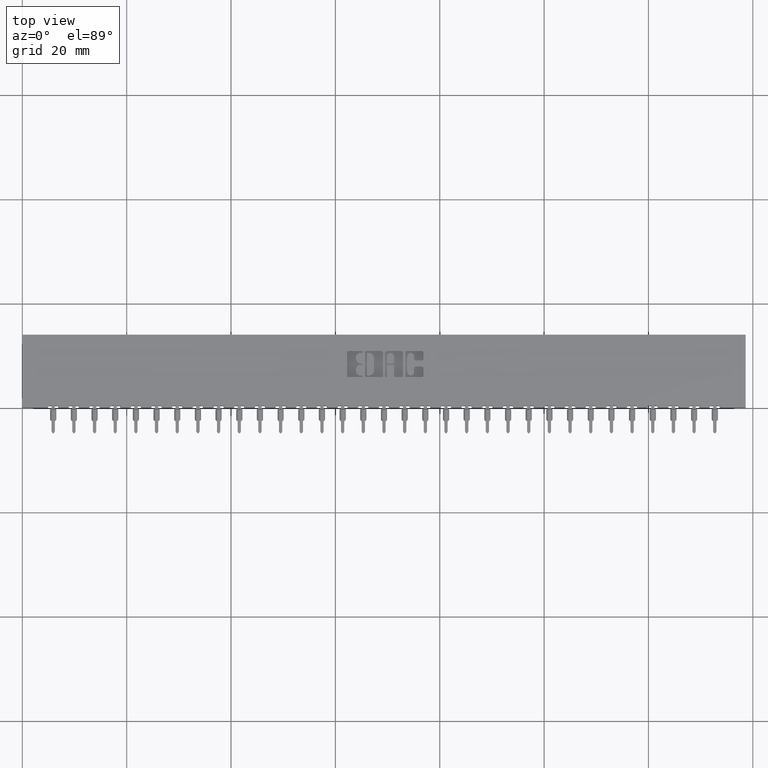
[diagram: clean part render]
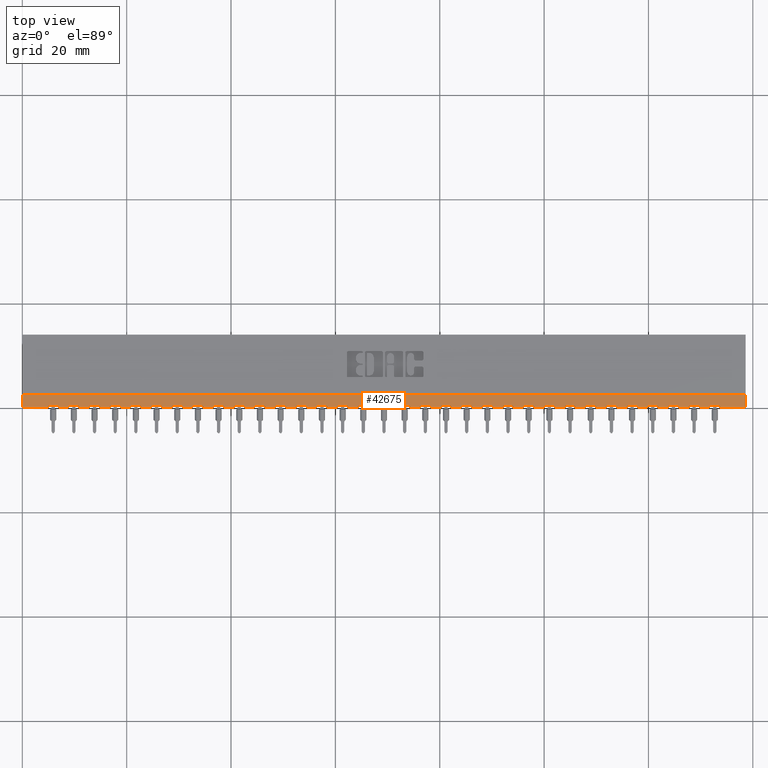
[diagram: same view with one face highlighted and labeled with its STEP entity id]
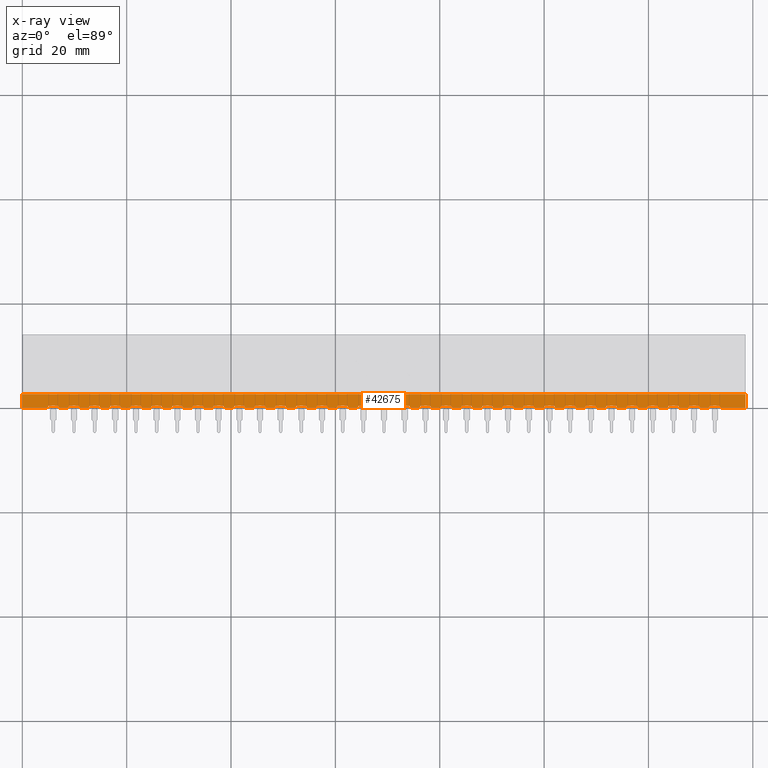
[diagram: x-ray of the same camera — body ghosted, the highlighted face saturated]
A machine part, top view. The second image highlights one B-rep face of the part: STEP entity #42675.
The next image is the same camera in x-ray: the body ghosted, the highlighted face saturated — about 0% of this face is hidden behind the body in this view.
In plain terms, the highlighted planar face has unit normal (0, 0, -1).
Its self-contained STEP definition (entity closure, byte-faithful):
#96 = DIRECTION ( 'NONE',  ( 1.000000000000000000, 0.0000000000000000000, 0.0000000000000000000 ) ) ;
#136 = VECTOR ( 'NONE', #29180, 39.37007874015748100 ) ;
#196 = EDGE_CURVE ( 'NONE', #55837, #17145, #48213, .T. ) ;
#234 = EDGE_CURVE ( 'NONE', #44167, #38308, #5378, .T. ) ;
#258 = VECTOR ( 'NONE', #20687, 39.37007874015748100 ) ;
#280 = CARTESIAN_POINT ( 'NONE',  ( 2.779999999999999800, 0.0000000000000000000, -0.02500000000000000500 ) ) ;
#284 = AXIS2_PLACEMENT_3D ( 'NONE', #36395, #54576, #22906 ) ;
#334 = ORIENTED_EDGE ( 'NONE', *, *, #10533, .T. ) ;
#376 = EDGE_CURVE ( 'NONE', #47844, #51531, #18721, .T. ) ;
#480 = CARTESIAN_POINT ( 'NONE',  ( 4.495999999999999600, 0.01499999999999999400, -0.02500000000000000500 ) ) ;
#502 = EDGE_CURVE ( 'NONE', #15874, #10577, #50260, .T. ) ;
#685 = CARTESIAN_POINT ( 'NONE',  ( 2.522000000000000200, 0.01499999999999999400, -0.02500000000000000500 ) ) ;
#712 = CARTESIAN_POINT ( 'NONE',  ( 0.4249999999999998200, 0.01499999999999999400, -0.02500000000000000500 ) ) ;
#727 = ORIENTED_EDGE ( 'NONE', *, *, #14772, .T. ) ;
#741 = DIRECTION ( 'NONE',  ( 1.000000000000000000, 0.0000000000000000000, 0.0000000000000000000 ) ) ;
#742 = CARTESIAN_POINT ( 'NONE',  ( 3.472999999999999900, 0.01499999999999999400, -0.02500000000000000500 ) ) ;
#766 = VERTEX_POINT ( 'NONE', #46824 ) ;
#811 = CIRCLE ( 'NONE', #2265, 0.01499999999999997700 ) ;
#829 = VERTEX_POINT ( 'NONE', #29605 ) ;
#881 = AXIS2_PLACEMENT_3D ( 'NONE', #31795, #22242, #31597 ) ;
#885 = DIRECTION ( 'NONE',  ( -0.0000000000000000000, 0.0000000000000000000, 1.000000000000000000 ) ) ;
#903 = LINE ( 'NONE', #25926, #9361 ) ;
#993 = DIRECTION ( 'NONE',  ( 1.000000000000000000, 0.0000000000000000000, 0.0000000000000000000 ) ) ;
#1011 = VERTEX_POINT ( 'NONE', #34894 ) ;
#1037 = CARTESIAN_POINT ( 'NONE',  ( 5.458000000000000200, 0.0000000000000000000, -0.02500000000000000500 ) ) ;
#1124 = LINE ( 'NONE', #5860, #20129 ) ;
#1187 = ORIENTED_EDGE ( 'NONE', *, *, #37249, .F. ) ;
#1220 = VECTOR ( 'NONE', #25122, 39.37007874015748100 ) ;
#1324 = CARTESIAN_POINT ( 'NONE',  ( 3.301999999999999200, 0.0000000000000000000, -0.02500000000000000500 ) ) ;
#1344 = VECTOR ( 'NONE', #48218, 39.37007874015748100 ) ;
#1366 = DIRECTION ( 'NONE',  ( 1.000000000000000000, 0.0000000000000000000, 0.0000000000000000000 ) ) ;
#1411 = VECTOR ( 'NONE', #13601, 39.37007874015748100 ) ;
#1412 = DIRECTION ( 'NONE',  ( -1.000000000000000000, 0.0000000000000000000, -0.0000000000000000000 ) ) ;
#1470 = LINE ( 'NONE', #9952, #47799 ) ;
#1491 = CIRCLE ( 'NONE', #31549, 0.01500000000000024900 ) ;
#1614 = CARTESIAN_POINT ( 'NONE',  ( 1.429999999999999700, 0.0000000000000000000, -0.02500000000000000500 ) ) ;
#1708 = DIRECTION ( 'NONE',  ( 1.000000000000000000, -0.0000000000000000000, -2.307304048702925100E-016 ) ) ;
#1733 = ORIENTED_EDGE ( 'NONE', *, *, #56532, .T. ) ;
#1887 = DIRECTION ( 'NONE',  ( 1.000000000000000000, 0.0000000000000000000, 0.0000000000000000000 ) ) ;
#2200 = DIRECTION ( 'NONE',  ( 1.000000000000000000, 0.0000000000000000000, 0.0000000000000000000 ) ) ;
#2265 = AXIS2_PLACEMENT_3D ( 'NONE', #49673, #19125, #9658 ) ;
#2297 = LINE ( 'NONE', #33706, #48626 ) ;
#2337 = DIRECTION ( 'NONE',  ( -1.000000000000000000, -0.0000000000000000000, -0.0000000000000000000 ) ) ;
#2347 = ORIENTED_EDGE ( 'NONE', *, *, #6558, .F. ) ;
#2364 = DIRECTION ( 'NONE',  ( 1.000000000000000000, 0.0000000000000000000, 0.0000000000000000000 ) ) ;
#2375 = EDGE_CURVE ( 'NONE', #47012, #3445, #2297, .T. ) ;
#2417 = CARTESIAN_POINT ( 'NONE',  ( 4.735999999999999800, 0.01499999999999999400, -0.02499999999999987300 ) ) ;
#2465 = CIRCLE ( 'NONE', #53087, 0.01500000000000024900 ) ;
#2479 = CIRCLE ( 'NONE', #881, 0.01500000000000001200 ) ;
#2514 = DIRECTION ( 'NONE',  ( 1.000000000000000000, 0.0000000000000000000, 0.0000000000000000000 ) ) ;
#2581 = EDGE_CURVE ( 'NONE', #14237, #13609, #9963, .T. ) ;
#2600 = ORIENTED_EDGE ( 'NONE', *, *, #53917, .T. ) ;
#2644 = EDGE_CURVE ( 'NONE', #48924, #40667, #8561, .T. ) ;
#2661 = CARTESIAN_POINT ( 'NONE',  ( 4.963999999999999500, 0.0000000000000000000, -0.02500000000000000500 ) ) ;
#2682 = LINE ( 'NONE', #52164, #1344 ) ;
#2683 = AXIS2_PLACEMENT_3D ( 'NONE', #7210, #20252, #3085 ) ;
#2711 = CARTESIAN_POINT ( 'NONE',  ( 1.828999999999999500, 0.01499999999999999400, -0.02500000000000000500 ) ) ;
#2775 = ORIENTED_EDGE ( 'NONE', *, *, #35739, .T. ) ;
#2790 = CARTESIAN_POINT ( 'NONE',  ( 5.458000000000000200, 0.0000000000000000000, -0.02500000000000000500 ) ) ;
#2843 = EDGE_CURVE ( 'NONE', #15372, #19325, #21279, .T. ) ;
#2861 = VERTEX_POINT ( 'NONE', #55368 ) ;
#2885 = CARTESIAN_POINT ( 'NONE',  ( 2.609000000000000000, 0.01499999999999999400, -0.02500000000000000500 ) ) ;
#2896 = DIRECTION ( 'NONE',  ( 0.0000000000000000000, -0.0000000000000000000, -1.000000000000000000 ) ) ;
#2909 = EDGE_CURVE ( 'NONE', #3900, #10577, #56927, .T. ) ;
#2968 = VECTOR ( 'NONE', #48053, 39.37007874015748100 ) ;
#2991 = ORIENTED_EDGE ( 'NONE', *, *, #27379, .T. ) ;
#3016 = ORIENTED_EDGE ( 'NONE', *, *, #58068, .T. ) ;
#3085 = DIRECTION ( 'NONE',  ( 1.000000000000000000, 0.0000000000000000000, 0.0000000000000000000 ) ) ;
#3140 = VECTOR ( 'NONE', #49876, 39.37007874015748100 ) ;
#3142 = EDGE_CURVE ( 'NONE', #14578, #28525, #24065, .T. ) ;
#3153 = CARTESIAN_POINT ( 'NONE',  ( 3.925999999999999700, 0.01499999999999999400, -0.02500000000000000500 ) ) ;
#3248 = CARTESIAN_POINT ( 'NONE',  ( 0.3379999999999999100, 0.01499999999999999400, -0.02500000000000000500 ) ) ;
#3289 = DIRECTION ( 'NONE',  ( 0.0000000000000000000, -0.0000000000000000000, -1.000000000000000000 ) ) ;
#3293 = CARTESIAN_POINT ( 'NONE',  ( 3.784999999999999700, 0.01499999999999999400, -0.02500000000000000500 ) ) ;
#3325 = DIRECTION ( 'NONE',  ( 1.000000000000000000, 0.0000000000000000000, 0.0000000000000000000 ) ) ;
#3417 = VECTOR ( 'NONE', #25411, 39.37007874015748100 ) ;
#3431 = DIRECTION ( 'NONE',  ( 1.000000000000000000, 0.0000000000000000000, 0.0000000000000000000 ) ) ;
#3445 = VERTEX_POINT ( 'NONE', #29451 ) ;
#3513 = CARTESIAN_POINT ( 'NONE',  ( 0.9079999999999998100, 0.01499999999999999400, -0.02500000000000000500 ) ) ;
#3616 = CARTESIAN_POINT ( 'NONE',  ( 2.155999999999999700, 0.01499999999999999400, -0.02500000000000000500 ) ) ;
#3629 = EDGE_CURVE ( 'NONE', #56567, #48497, #37231, .T. ) ;
#3758 = CARTESIAN_POINT ( 'NONE',  ( 4.168999999999999600, 0.01499999999999999400, -0.02500000000000000500 ) ) ;
#3781 = CARTESIAN_POINT ( 'NONE',  ( 0.5959999999999998600, 0.0000000000000000000, -0.02500000000000000500 ) ) ;
#3792 = EDGE_CURVE ( 'NONE', #24686, #57278, #56814, .T. ) ;
#3808 = VERTEX_POINT ( 'NONE', #53707 ) ;
#3900 = VERTEX_POINT ( 'NONE', #56018 ) ;
#3945 = ORIENTED_EDGE ( 'NONE', *, *, #54907, .T. ) ;
#3980 = CARTESIAN_POINT ( 'NONE',  ( 3.019999999999999600, 0.01499999999999999400, -0.02499999999999987300 ) ) ;
#3983 = ORIENTED_EDGE ( 'NONE', *, *, #30351, .T. ) ;
#4032 = VERTEX_POINT ( 'NONE', #38216 ) ;
#4066 = CIRCLE ( 'NONE', #52392, 0.01499999999999997700 ) ;
#4131 = EDGE_CURVE ( 'NONE', #4032, #41528, #47058, .T. ) ;
#4142 = CARTESIAN_POINT ( 'NONE',  ( 5.458000000000000200, 0.1000000000000000100, -0.02500000000000000500 ) ) ;
#4146 = DIRECTION ( 'NONE',  ( 0.0000000000000000000, -0.0000000000000000000, -1.000000000000000000 ) ) ;
#4153 = CIRCLE ( 'NONE', #11226, 0.01499999999999997700 ) ;
#4213 = CARTESIAN_POINT ( 'NONE',  ( 5.032999999999999500, 0.01499999999999999400, -0.02500000000000000500 ) ) ;
#4404 = VERTEX_POINT ( 'NONE', #47663 ) ;
#4472 = DIRECTION ( 'NONE',  ( -0.0000000000000000000, 0.0000000000000000000, 1.000000000000000000 ) ) ;
#4531 = DIRECTION ( 'NONE',  ( -1.000000000000000000, -0.0000000000000000000, -0.0000000000000000000 ) ) ;
#4628 = CARTESIAN_POINT ( 'NONE',  ( 4.081999999999999900, 0.01499999999999999400, -0.02500000000000000500 ) ) ;
#4747 = LINE ( 'NONE', #25486, #19572 ) ;
#4798 = AXIS2_PLACEMENT_3D ( 'NONE', #3513, #38848, #3325 ) ;
#4823 = DIRECTION ( 'NONE',  ( -0.0000000000000000000, 0.0000000000000000000, 1.000000000000000000 ) ) ;
#4839 = EDGE_CURVE ( 'NONE', #51792, #4404, #19642, .T. ) ;
#4843 = CARTESIAN_POINT ( 'NONE',  ( 2.764999999999999700, 0.01499999999999999400, -0.02500000000000000500 ) ) ;
#4859 = AXIS2_PLACEMENT_3D ( 'NONE', #18210, #4823, #22747 ) ;
#4860 = CARTESIAN_POINT ( 'NONE',  ( 1.444999999999999800, 0.01499999999999999400, -0.02500000000000000500 ) ) ;
#4878 = ORIENTED_EDGE ( 'NONE', *, *, #17977, .F. ) ;
#5153 = CARTESIAN_POINT ( 'NONE',  ( 0.2119999999999999100, 0.01499999999999999400, -0.02499999999999987300 ) ) ;
#5165 = FACE_OUTER_BOUND ( 'NONE', #33670, .T. ) ;
#5195 = AXIS2_PLACEMENT_3D ( 'NONE', #53948, #45683, #22650 ) ;
#5216 = EDGE_CURVE ( 'NONE', #16894, #17061, #50417, .T. ) ;
#5362 = CARTESIAN_POINT ( 'NONE',  ( 1.984999999999999700, 0.01499999999999999400, -0.02500000000000000500 ) ) ;
#5366 = CARTESIAN_POINT ( 'NONE',  ( 3.487999999999999500, 0.01499999999999999400, -0.02499999999999987300 ) ) ;
#5374 = VERTEX_POINT ( 'NONE', #18696 ) ;
#5376 = CARTESIAN_POINT ( 'NONE',  ( 2.834000000000000100, 0.0000000000000000000, -0.02500000000000000500 ) ) ;
#5378 = LINE ( 'NONE', #20504, #15975 ) ;
#5570 = ORIENTED_EDGE ( 'NONE', *, *, #39008, .T. ) ;
#5652 = VERTEX_POINT ( 'NONE', #42556 ) ;
#5692 = CIRCLE ( 'NONE', #35613, 0.01500000000000024900 ) ;
#5705 = CARTESIAN_POINT ( 'NONE',  ( 0.8059999999999998300, 0.01499999999999999400, -0.02500000000000000500 ) ) ;
#5782 = EDGE_CURVE ( 'NONE', #17345, #16379, #34265, .T. ) ;
#5806 = ORIENTED_EDGE ( 'NONE', *, *, #39960, .F. ) ;
#5808 = AXIS2_PLACEMENT_3D ( 'NONE', #34535, #2896, #7603 ) ;
#5860 = CARTESIAN_POINT ( 'NONE',  ( 0.9919999999999998800, 0.01499999999999999400, -0.02499999999999987300 ) ) ;
#5874 = EDGE_CURVE ( 'NONE', #34816, #11324, #53852, .T. ) ;
#5953 = EDGE_CURVE ( 'NONE', #38800, #55837, #22360, .T. ) ;
#6113 = DIRECTION ( 'NONE',  ( -0.0000000000000000000, 0.0000000000000000000, 1.000000000000000000 ) ) ;
#6185 = CARTESIAN_POINT ( 'NONE',  ( 1.600999999999999800, 0.01499999999999999400, -0.02500000000000000500 ) ) ;
#6202 = LINE ( 'NONE', #3980, #57383 ) ;
#6222 = LINE ( 'NONE', #31618, #9765 ) ;
#6227 = VERTEX_POINT ( 'NONE', #19965 ) ;
#6449 = ORIENTED_EDGE ( 'NONE', *, *, #53970, .T. ) ;
#6459 = CARTESIAN_POINT ( 'NONE',  ( 4.963999999999999500, 0.01499999999999999400, -0.02500000000000000500 ) ) ;
#6548 = DIRECTION ( 'NONE',  ( 1.000000000000000000, 0.0000000000000000000, 0.0000000000000000000 ) ) ;
#6558 = EDGE_CURVE ( 'NONE', #41601, #51531, #39719, .T. ) ;
#6596 = DIRECTION ( 'NONE',  ( 1.000000000000000000, -0.0000000000000000000, -2.307304048702925100E-016 ) ) ;
#6679 = CARTESIAN_POINT ( 'NONE',  ( 0.9079999999999998100, 0.0000000000000000000, -0.02500000000000000500 ) ) ;
#6695 = CIRCLE ( 'NONE', #12483, 0.01500000000000024900 ) ;
#6825 = ORIENTED_EDGE ( 'NONE', *, *, #15279, .T. ) ;
#6960 = EDGE_CURVE ( 'NONE', #13609, #52142, #49526, .T. ) ;
#6991 = ORIENTED_EDGE ( 'NONE', *, *, #14800, .T. ) ;
#7076 = CIRCLE ( 'NONE', #31530, 0.01500000000000024900 ) ;
#7210 = CARTESIAN_POINT ( 'NONE',  ( 1.585999999999999600, 0.01499999999999999400, -0.02500000000000000500 ) ) ;
#7270 = ORIENTED_EDGE ( 'NONE', *, *, #43141, .T. ) ;
#7272 = EDGE_CURVE ( 'NONE', #24742, #49120, #31270, .T. ) ;
#7413 = DIRECTION ( 'NONE',  ( -1.000000000000000000, -0.0000000000000000000, -0.0000000000000000000 ) ) ;
#7470 = DIRECTION ( 'NONE',  ( 1.000000000000000000, 0.0000000000000000000, 0.0000000000000000000 ) ) ;
#7515 = DIRECTION ( 'NONE',  ( 1.000000000000000000, 0.0000000000000000000, 0.0000000000000000000 ) ) ;
#7568 = DIRECTION ( 'NONE',  ( -1.000000000000000000, -0.0000000000000000000, -0.0000000000000000000 ) ) ;
#7603 = DIRECTION ( 'NONE',  ( 1.000000000000000000, 0.0000000000000000000, 0.0000000000000000000 ) ) ;
#7607 = ORIENTED_EDGE ( 'NONE', *, *, #53019, .T. ) ;
#7634 = CARTESIAN_POINT ( 'NONE',  ( 5.458000000000000200, 0.0000000000000000000, -0.02500000000000000500 ) ) ;
#7667 = CARTESIAN_POINT ( 'NONE',  ( 2.834000000000000100, 0.01499999999999999400, -0.02500000000000000500 ) ) ;
#7675 = CARTESIAN_POINT ( 'NONE',  ( 5.104999999999999500, 0.01499999999999999400, -0.02500000000000000500 ) ) ;
#7705 = CIRCLE ( 'NONE', #50824, 0.01499999999999970300 ) ;
#7903 = ORIENTED_EDGE ( 'NONE', *, *, #28429, .T. ) ;
#7920 = VERTEX_POINT ( 'NONE', #14903 ) ;
#8012 = DIRECTION ( 'NONE',  ( 0.0000000000000000000, -0.0000000000000000000, -1.000000000000000000 ) ) ;
#8125 = DIRECTION ( 'NONE',  ( 1.000000000000000000, -0.0000000000000000000, -2.307304048702925100E-016 ) ) ;
#8290 = AXIS2_PLACEMENT_3D ( 'NONE', #46074, #23414, #1366 ) ;
#8393 = VERTEX_POINT ( 'NONE', #23033 ) ;
#8399 = ORIENTED_EDGE ( 'NONE', *, *, #53885, .F. ) ;
#8402 = CARTESIAN_POINT ( 'NONE',  ( 5.458000000000000200, 0.0000000000000000000, -0.02500000000000000500 ) ) ;
#8418 = CARTESIAN_POINT ( 'NONE',  ( 1.460000000000000000, 0.01499999999999999400, -0.02499999999999987300 ) ) ;
#8434 = CARTESIAN_POINT ( 'NONE',  ( 0.2839999999999999200, 0.0000000000000000000, -0.02500000000000000500 ) ) ;
#8471 = DIRECTION ( 'NONE',  ( -0.0000000000000000000, -1.000000000000000000, -0.0000000000000000000 ) ) ;
#8475 = VERTEX_POINT ( 'NONE', #45892 ) ;
#8525 = ORIENTED_EDGE ( 'NONE', *, *, #9870, .T. ) ;
#8528 = ORIENTED_EDGE ( 'NONE', *, *, #2375, .T. ) ;
#8561 = CIRCLE ( 'NONE', #284, 0.01500000000000024900 ) ;
#8576 = DIRECTION ( 'NONE',  ( 1.000000000000000000, 0.0000000000000000000, 0.0000000000000000000 ) ) ;
#8612 = CARTESIAN_POINT ( 'NONE',  ( 5.275999999999998900, 0.0000000000000000000, -0.02500000000000000500 ) ) ;
#8655 = CARTESIAN_POINT ( 'NONE',  ( 2.677999999999999500, 0.0000000000000000000, -0.02500000000000000500 ) ) ;
#8661 = DIRECTION ( 'NONE',  ( 1.000000000000000000, 0.0000000000000000000, 0.0000000000000000000 ) ) ;
#8735 = CARTESIAN_POINT ( 'NONE',  ( 1.516999999999999700, 0.01499999999999999400, -0.02500000000000000500 ) ) ;
#8792 = EDGE_CURVE ( 'NONE', #21829, #36397, #24780, .T. ) ;
#8814 = DIRECTION ( 'NONE',  ( -1.000000000000000000, -0.0000000000000000000, -0.0000000000000000000 ) ) ;
#8920 = EDGE_CURVE ( 'NONE', #53144, #7920, #21963, .T. ) ;
#8987 = ORIENTED_EDGE ( 'NONE', *, *, #3142, .T. ) ;
#9003 = VERTEX_POINT ( 'NONE', #45647 ) ;
#9020 = DIRECTION ( 'NONE',  ( 1.000000000000000000, 0.0000000000000000000, 0.0000000000000000000 ) ) ;
#9073 = LINE ( 'NONE', #13507, #22557 ) ;
#9114 = CARTESIAN_POINT ( 'NONE',  ( 3.331999999999999400, 0.01499999999999999400, -0.02499999999999987300 ) ) ;
#9135 = CARTESIAN_POINT ( 'NONE',  ( 0.5090000000000000100, 0.01499999999999999400, -0.02500000000000000500 ) ) ;
#9168 = DIRECTION ( 'NONE',  ( 1.000000000000000000, 0.0000000000000000000, 0.0000000000000000000 ) ) ;
#9190 = ORIENTED_EDGE ( 'NONE', *, *, #23186, .T. ) ;
#9295 = VECTOR ( 'NONE', #33493, 39.37007874015748100 ) ;
#9301 = EDGE_CURVE ( 'NONE', #14237, #50738, #10599, .T. ) ;
#9361 = VECTOR ( 'NONE', #7413, 39.37007874015748100 ) ;
#9378 = ORIENTED_EDGE ( 'NONE', *, *, #42566, .F. ) ;
#9452 = DIRECTION ( 'NONE',  ( 1.000000000000000000, 0.0000000000000000000, 0.0000000000000000000 ) ) ;
#9463 = VERTEX_POINT ( 'NONE', #37279 ) ;
#9504 = CARTESIAN_POINT ( 'NONE',  ( 2.140999999999999600, 0.01499999999999999400, -0.02500000000000000500 ) ) ;
#9528 = AXIS2_PLACEMENT_3D ( 'NONE', #5705, #41585, #36529 ) ;
#9555 = CARTESIAN_POINT ( 'NONE',  ( 2.989999999999999300, 0.01499999999999999400, -0.02500000000000000500 ) ) ;
#9631 = VERTEX_POINT ( 'NONE', #42916 ) ;
#9652 = DIRECTION ( 'NONE',  ( -0.0000000000000000000, 0.0000000000000000000, 1.000000000000000000 ) ) ;
#9658 = DIRECTION ( 'NONE',  ( 1.000000000000000000, 0.0000000000000000000, 0.0000000000000000000 ) ) ;
#9708 = VECTOR ( 'NONE', #48995, 39.37007874015748100 ) ;
#9765 = VECTOR ( 'NONE', #22828, 39.37007874015748100 ) ;
#9780 = ORIENTED_EDGE ( 'NONE', *, *, #33663, .F. ) ;
#9844 = DIRECTION ( 'NONE',  ( 1.000000000000000000, 0.0000000000000000000, 0.0000000000000000000 ) ) ;
#9862 = DIRECTION ( 'NONE',  ( -0.0000000000000000000, 0.0000000000000000000, 1.000000000000000000 ) ) ;
#9870 = EDGE_CURVE ( 'NONE', #9003, #56162, #5692, .T. ) ;
#9917 = EDGE_CURVE ( 'NONE', #30957, #3900, #1470, .T. ) ;
#9942 = DIRECTION ( 'NONE',  ( 1.000000000000000000, 0.0000000000000000000, 0.0000000000000000000 ) ) ;
#9952 = CARTESIAN_POINT ( 'NONE',  ( 5.458000000000000200, 0.0000000000000000000, -0.02500000000000000500 ) ) ;
#9963 = LINE ( 'NONE', #40091, #42931 ) ;
#9989 = VERTEX_POINT ( 'NONE', #19420 ) ;
#10018 = ORIENTED_EDGE ( 'NONE', *, *, #502, .T. ) ;
#10098 = ORIENTED_EDGE ( 'NONE', *, *, #52252, .F. ) ;
#10179 = CIRCLE ( 'NONE', #49150, 0.01499999999999997700 ) ;
#10291 = CARTESIAN_POINT ( 'NONE',  ( 0.7519999999999997800, 0.01499999999999999400, -0.02500000000000000500 ) ) ;
#10341 = ORIENTED_EDGE ( 'NONE', *, *, #53719, .T. ) ;
#10394 = CIRCLE ( 'NONE', #50951, 0.01499999999999970300 ) ;
#10446 = VERTEX_POINT ( 'NONE', #29122 ) ;
#10488 = DIRECTION ( 'NONE',  ( 1.000000000000000000, -0.0000000000000000000, -2.307304048702925100E-016 ) ) ;
#10533 = EDGE_CURVE ( 'NONE', #22729, #54514, #41269, .T. ) ;
#10577 = VERTEX_POINT ( 'NONE', #7675 ) ;
#10599 = CIRCLE ( 'NONE', #32920, 0.01499999999999997700 ) ;
#10610 = EDGE_CURVE ( 'NONE', #2861, #41319, #11635, .T. ) ;
#10613 = CARTESIAN_POINT ( 'NONE',  ( 1.117999999999999900, 0.0000000000000000000, -0.02500000000000000500 ) ) ;
#10636 = LINE ( 'NONE', #12524, #22622 ) ;
#10658 = DIRECTION ( 'NONE',  ( -1.000000000000000000, -0.0000000000000000000, -0.0000000000000000000 ) ) ;
#10763 = ORIENTED_EDGE ( 'NONE', *, *, #44594, .T. ) ;
#10842 = CARTESIAN_POINT ( 'NONE',  ( 5.458000000000000200, 0.0000000000000000000, -0.02500000000000000500 ) ) ;
#10921 = VECTOR ( 'NONE', #15672, 39.37007874015748100 ) ;
#11169 = AXIS2_PLACEMENT_3D ( 'NONE', #25434, #34040, #56712 ) ;
#11182 = VECTOR ( 'NONE', #22451, 39.37007874015748100 ) ;
#11209 = LINE ( 'NONE', #50913, #32270 ) ;
#11226 = AXIS2_PLACEMENT_3D ( 'NONE', #19130, #15185, #46529 ) ;
#11292 = ORIENTED_EDGE ( 'NONE', *, *, #9917, .F. ) ;
#11324 = VERTEX_POINT ( 'NONE', #4843 ) ;
#11357 = DIRECTION ( 'NONE',  ( -0.0000000000000000000, 0.0000000000000000000, 1.000000000000000000 ) ) ;
#11361 = CARTESIAN_POINT ( 'NONE',  ( 3.940999999999999800, 0.01499999999999999400, -0.02500000000000000500 ) ) ;
#11409 = CIRCLE ( 'NONE', #5195, 0.01499999999999997700 ) ;
#11424 = CIRCLE ( 'NONE', #4798, 0.01499999999999997700 ) ;
#11465 = DIRECTION ( 'NONE',  ( -0.0000000000000000000, 0.0000000000000000000, 1.000000000000000000 ) ) ;
#11497 = CIRCLE ( 'NONE', #36401, 0.01500000000000024900 ) ;
#11521 = DIRECTION ( 'NONE',  ( -0.0000000000000000000, 0.0000000000000000000, 1.000000000000000000 ) ) ;
#11537 = ORIENTED_EDGE ( 'NONE', *, *, #55216, .F. ) ;
#11635 = CIRCLE ( 'NONE', #38247, 0.01500000000000024900 ) ;
#11676 = ORIENTED_EDGE ( 'NONE', *, *, #40947, .T. ) ;
#11704 = CARTESIAN_POINT ( 'NONE',  ( 4.807999999999999800, 0.01499999999999999400, -0.02500000000000000500 ) ) ;
#11779 = CARTESIAN_POINT ( 'NONE',  ( 1.219999999999999800, 0.0000000000000000000, -0.02500000000000000500 ) ) ;
#11814 = VECTOR ( 'NONE', #23881, 39.37007874015748100 ) ;
#11823 = VERTEX_POINT ( 'NONE', #54006 ) ;
#11859 = VECTOR ( 'NONE', #6596, 39.37007874015748100 ) ;
#11941 = CARTESIAN_POINT ( 'NONE',  ( 3.871999999999999400, 0.01499999999999999400, -0.02500000000000000500 ) ) ;
#12027 = ORIENTED_EDGE ( 'NONE', *, *, #14084, .T. ) ;
#12099 = CARTESIAN_POINT ( 'NONE',  ( 3.403999999999999500, 0.0000000000000000000, -0.02500000000000000500 ) ) ;
#12103 = ORIENTED_EDGE ( 'NONE', *, *, #13791, .F. ) ;
#12112 = EDGE_CURVE ( 'NONE', #25478, #5374, #903, .T. ) ;
#12138 = CARTESIAN_POINT ( 'NONE',  ( 2.155999999999999700, 0.0000000000000000000, -0.02500000000000000500 ) ) ;
#12161 = EDGE_CURVE ( 'NONE', #38372, #43386, #24862, .T. ) ;
#12212 = CARTESIAN_POINT ( 'NONE',  ( 4.636999999999999600, 0.01499999999999999400, -0.02500000000000000500 ) ) ;
#12224 = CARTESIAN_POINT ( 'NONE',  ( 2.935999999999999900, 0.0000000000000000000, -0.02500000000000000500 ) ) ;
#12269 = ORIENTED_EDGE ( 'NONE', *, *, #56323, .F. ) ;
#12373 = LINE ( 'NONE', #18003, #17259 ) ;
#12483 = AXIS2_PLACEMENT_3D ( 'NONE', #17040, #25876, #47782 ) ;
#12489 = CARTESIAN_POINT ( 'NONE',  ( 5.458000000000000200, 0.0000000000000000000, -0.02500000000000000500 ) ) ;
#12517 = ORIENTED_EDGE ( 'NONE', *, *, #13107, .F. ) ;
#12524 = CARTESIAN_POINT ( 'NONE',  ( 2.239999999999999800, 0.01499999999999999400, -0.02499999999999987300 ) ) ;
#12752 = ORIENTED_EDGE ( 'NONE', *, *, #40331, .T. ) ;
#13107 = EDGE_CURVE ( 'NONE', #53123, #17345, #22616, .T. ) ;
#13303 = CARTESIAN_POINT ( 'NONE',  ( 4.549999999999999800, 0.0000000000000000000, -0.02500000000000000500 ) ) ;
#13335 = CARTESIAN_POINT ( 'NONE',  ( 4.393999999999999200, 0.01499999999999999400, -0.02500000000000000500 ) ) ;
#13376 = ORIENTED_EDGE ( 'NONE', *, *, #29487, .F. ) ;
#13387 = ORIENTED_EDGE ( 'NONE', *, *, #22521, .F. ) ;
#13454 = VECTOR ( 'NONE', #24448, 39.37007874015748100 ) ;
#13464 = CARTESIAN_POINT ( 'NONE',  ( 5.275999999999998900, 0.01499999999999999400, -0.02500000000000000500 ) ) ;
#13507 = CARTESIAN_POINT ( 'NONE',  ( 5.458000000000000200, 0.0000000000000000000, -0.02500000000000000500 ) ) ;
#13513 = EDGE_CURVE ( 'NONE', #41528, #54514, #1491, .T. ) ;
#13556 = ORIENTED_EDGE ( 'NONE', *, *, #9301, .T. ) ;
#13564 = EDGE_CURVE ( 'NONE', #50738, #38904, #10636, .T. ) ;
#13589 = CARTESIAN_POINT ( 'NONE',  ( 3.457999999999999700, 0.0000000000000000000, -0.02500000000000000500 ) ) ;
#13601 = DIRECTION ( 'NONE',  ( -1.000000000000000000, -0.0000000000000000000, -0.0000000000000000000 ) ) ;
#13609 = VERTEX_POINT ( 'NONE', #12138 ) ;
#13625 = CARTESIAN_POINT ( 'NONE',  ( 3.559999999999999600, 0.01499999999999999400, -0.02500000000000000500 ) ) ;
#13696 = ORIENTED_EDGE ( 'NONE', *, *, #25348, .T. ) ;
#13791 = EDGE_CURVE ( 'NONE', #43386, #14679, #37267, .T. ) ;
#13849 = ORIENTED_EDGE ( 'NONE', *, *, #25886, .T. ) ;
#13947 = LINE ( 'NONE', #28253, #11859 ) ;
#14056 = AXIS2_PLACEMENT_3D ( 'NONE', #3153, #17341, #48655 ) ;
#14084 = EDGE_CURVE ( 'NONE', #50764, #38567, #23288, .T. ) ;
#14124 = CARTESIAN_POINT ( 'NONE',  ( 2.468000000000000000, 0.0000000000000000000, -0.02500000000000000500 ) ) ;
#14237 = VERTEX_POINT ( 'NONE', #35619 ) ;
#14355 = ORIENTED_EDGE ( 'NONE', *, *, #56349, .F. ) ;
#14392 = DIRECTION ( 'NONE',  ( 1.000000000000000000, -0.0000000000000000000, -2.307304048702925100E-016 ) ) ;
#14466 = AXIS2_PLACEMENT_3D ( 'NONE', #49063, #47501, #25393 ) ;
#14523 = ORIENTED_EDGE ( 'NONE', *, *, #55329, .T. ) ;
#14578 = VERTEX_POINT ( 'NONE', #46531 ) ;
#14608 = EDGE_CURVE ( 'NONE', #38372, #829, #39972, .T. ) ;
#14648 = CIRCLE ( 'NONE', #51288, 0.01500000000000024900 ) ;
#14664 = DIRECTION ( 'NONE',  ( 1.000000000000000000, 0.0000000000000000000, 0.0000000000000000000 ) ) ;
#14679 = VERTEX_POINT ( 'NONE', #58033 ) ;
#14700 = EDGE_CURVE ( 'NONE', #28221, #41319, #23935, .T. ) ;
#14705 = LINE ( 'NONE', #19843, #43392 ) ;
#14772 = EDGE_CURVE ( 'NONE', #50588, #52142, #25267, .T. ) ;
#14800 = EDGE_CURVE ( 'NONE', #26802, #45035, #6222, .T. ) ;
#14806 = ORIENTED_EDGE ( 'NONE', *, *, #38546, .F. ) ;
#14812 = LINE ( 'NONE', #44821, #43509 ) ;
#14841 = DIRECTION ( 'NONE',  ( 1.000000000000000000, 0.0000000000000000000, 0.0000000000000000000 ) ) ;
#14903 = CARTESIAN_POINT ( 'NONE',  ( 1.133000000000000000, 0.01499999999999999400, -0.02500000000000000500 ) ) ;
#15070 = LINE ( 'NONE', #53222, #54276 ) ;
#15096 = CARTESIAN_POINT ( 'NONE',  ( 2.068999999999999500, 0.01499999999999999400, -0.02500000000000000500 ) ) ;
#15110 = VECTOR ( 'NONE', #17930, 39.37007874015748100 ) ;
#15142 = DIRECTION ( 'NONE',  ( 1.000000000000000000, 0.0000000000000000000, 0.0000000000000000000 ) ) ;
#15149 = ORIENTED_EDGE ( 'NONE', *, *, #28697, .T. ) ;
#15162 = VERTEX_POINT ( 'NONE', #43894 ) ;
#15185 = DIRECTION ( 'NONE',  ( 0.0000000000000000000, -0.0000000000000000000, -1.000000000000000000 ) ) ;
#15279 = EDGE_CURVE ( 'NONE', #39631, #37428, #21712, .T. ) ;
#15281 = DIRECTION ( 'NONE',  ( 0.0000000000000000000, -0.0000000000000000000, -1.000000000000000000 ) ) ;
#15353 = EDGE_CURVE ( 'NONE', #46435, #42956, #17487, .T. ) ;
#15372 = VERTEX_POINT ( 'NONE', #41227 ) ;
#15495 = CARTESIAN_POINT ( 'NONE',  ( 5.458000000000000200, 0.0000000000000000000, -0.02500000000000000500 ) ) ;
#15554 = CIRCLE ( 'NONE', #53667, 0.01500000000000004500 ) ;
#15565 = VERTEX_POINT ( 'NONE', #12212 ) ;
#15672 = DIRECTION ( 'NONE',  ( 1.000000000000000000, -0.0000000000000000000, -2.307304048702925100E-016 ) ) ;
#15766 = AXIS2_PLACEMENT_3D ( 'NONE', #19511, #19310, #2364 ) ;
#15812 = ORIENTED_EDGE ( 'NONE', *, *, #19162, .F. ) ;
#15874 = VERTEX_POINT ( 'NONE', #4213 ) ;
#15941 = VERTEX_POINT ( 'NONE', #36046 ) ;
#15975 = VECTOR ( 'NONE', #51794, 39.37007874015748100 ) ;
#16156 = DIRECTION ( 'NONE',  ( 1.000000000000000000, -0.0000000000000000000, -2.307304048702925100E-016 ) ) ;
#16228 = CIRCLE ( 'NONE', #48773, 0.01500000000000024900 ) ;
#16276 = CARTESIAN_POINT ( 'NONE',  ( 2.779999999999999800, 0.01499999999999999400, -0.02500000000000000500 ) ) ;
#16379 = VERTEX_POINT ( 'NONE', #8612 ) ;
#16411 = DIRECTION ( 'NONE',  ( -0.0000000000000000000, 0.0000000000000000000, 1.000000000000000000 ) ) ;
#16451 = ORIENTED_EDGE ( 'NONE', *, *, #376, .T. ) ;
#16559 = CARTESIAN_POINT ( 'NONE',  ( 1.741999999999999500, 0.0000000000000000000, -0.02500000000000000500 ) ) ;
#16562 = CARTESIAN_POINT ( 'NONE',  ( 1.204999999999999800, 0.01499999999999999400, -0.02500000000000000500 ) ) ;
#16733 = ORIENTED_EDGE ( 'NONE', *, *, #57986, .F. ) ;
#16741 = CARTESIAN_POINT ( 'NONE',  ( 2.863999999999999900, 0.01499999999999999400, -0.02499999999999987300 ) ) ;
#16798 = CARTESIAN_POINT ( 'NONE',  ( 0.3679999999999998800, 0.01499999999999999400, -0.02499999999999987300 ) ) ;
#16809 = CARTESIAN_POINT ( 'NONE',  ( 4.891999999999999500, 0.01499999999999999400, -0.02499999999999987300 ) ) ;
#16891 = LINE ( 'NONE', #29545, #29477 ) ;
#16894 = VERTEX_POINT ( 'NONE', #30350 ) ;
#16986 = VERTEX_POINT ( 'NONE', #8735 ) ;
#17008 = DIRECTION ( 'NONE',  ( 1.000000000000000000, -0.0000000000000000000, -2.307304048702925100E-016 ) ) ;
#17024 = VERTEX_POINT ( 'NONE', #53249 ) ;
#17029 = ORIENTED_EDGE ( 'NONE', *, *, #57712, .T. ) ;
#17040 = CARTESIAN_POINT ( 'NONE',  ( 4.184000000000000200, 0.01499999999999999400, -0.02500000000000000500 ) ) ;
#17050 = CARTESIAN_POINT ( 'NONE',  ( 1.897999999999999900, 0.01499999999999999400, -0.02500000000000000500 ) ) ;
#17058 = CIRCLE ( 'NONE', #54418, 0.01499999999999997700 ) ;
#17061 = VERTEX_POINT ( 'NONE', #40652 ) ;
#17145 = VERTEX_POINT ( 'NONE', #5362 ) ;
#17180 = DIRECTION ( 'NONE',  ( 0.0000000000000000000, -0.0000000000000000000, -1.000000000000000000 ) ) ;
#17184 = VECTOR ( 'NONE', #47771, 39.37007874015748100 ) ;
#17211 = DIRECTION ( 'NONE',  ( 1.000000000000000000, 0.0000000000000000000, 0.0000000000000000000 ) ) ;
#17259 = VECTOR ( 'NONE', #40482, 39.37007874015748100 ) ;
#17276 = DIRECTION ( 'NONE',  ( 1.000000000000000000, -0.0000000000000000000, -2.307304048702925100E-016 ) ) ;
#17326 = AXIS2_PLACEMENT_3D ( 'NONE', #480, #23735, #41091 ) ;
#17341 = DIRECTION ( 'NONE',  ( -0.0000000000000000000, 0.0000000000000000000, 1.000000000000000000 ) ) ;
#17345 = VERTEX_POINT ( 'NONE', #33835 ) ;
#17487 = LINE ( 'NONE', #55160, #11814 ) ;
#17563 = EDGE_CURVE ( 'NONE', #41628, #19323, #52962, .T. ) ;
#17740 = DIRECTION ( 'NONE',  ( -1.000000000000000000, -0.0000000000000000000, -0.0000000000000000000 ) ) ;
#17781 = EDGE_CURVE ( 'NONE', #58149, #2861, #40957, .T. ) ;
#17797 = VERTEX_POINT ( 'NONE', #6679 ) ;
#17800 = CARTESIAN_POINT ( 'NONE',  ( 0.4939999999999998800, 0.0000000000000000000, -0.02500000000000000500 ) ) ;
#17808 = VERTEX_POINT ( 'NONE', #11779 ) ;
#17821 = VERTEX_POINT ( 'NONE', #48230 ) ;
#17923 = VERTEX_POINT ( 'NONE', #57047 ) ;
#17930 = DIRECTION ( 'NONE',  ( 1.000000000000000000, -0.0000000000000000000, -2.307304048702925100E-016 ) ) ;
#17975 = AXIS2_PLACEMENT_3D ( 'NONE', #29527, #16411, #7515 ) ;
#17977 = EDGE_CURVE ( 'NONE', #45539, #34816, #33311, .T. ) ;
#17998 = DIRECTION ( 'NONE',  ( 1.000000000000000000, -0.0000000000000000000, -2.307304048702925100E-016 ) ) ;
#18003 = CARTESIAN_POINT ( 'NONE',  ( 5.458000000000000200, 0.0000000000000000000, -0.02500000000000000500 ) ) ;
#18042 = CARTESIAN_POINT ( 'NONE',  ( 1.771999999999999800, 0.01499999999999999400, -0.02499999999999987300 ) ) ;
#18117 = DIRECTION ( 'NONE',  ( -0.0000000000000000000, 0.0000000000000000000, 1.000000000000000000 ) ) ;
#18142 = CARTESIAN_POINT ( 'NONE',  ( 4.705999999999999500, 0.01499999999999999400, -0.02500000000000000500 ) ) ;
#18152 = ORIENTED_EDGE ( 'NONE', *, *, #22512, .T. ) ;
#18203 = AXIS2_PLACEMENT_3D ( 'NONE', #54184, #9862, #45927 ) ;
#18210 = CARTESIAN_POINT ( 'NONE',  ( 3.301999999999999200, 0.01499999999999999400, -0.02500000000000000500 ) ) ;
#18212 = LINE ( 'NONE', #20914, #3417 ) ;
#18471 = LINE ( 'NONE', #57569, #9295 ) ;
#18512 = EDGE_CURVE ( 'NONE', #48497, #54482, #54918, .T. ) ;
#18526 = AXIS2_PLACEMENT_3D ( 'NONE', #11704, #15281, #1887 ) ;
#18528 = CARTESIAN_POINT ( 'NONE',  ( 4.862000000000000100, 0.0000000000000000000, -0.02500000000000000500 ) ) ;
#18532 = ORIENTED_EDGE ( 'NONE', *, *, #10610, .F. ) ;
#18550 = DIRECTION ( 'NONE',  ( 0.0000000000000000000, -0.0000000000000000000, -1.000000000000000000 ) ) ;
#18667 = EDGE_CURVE ( 'NONE', #25478, #48077, #11409, .T. ) ;
#18696 = CARTESIAN_POINT ( 'NONE',  ( 1.375999999999999700, 0.0000000000000000000, -0.02500000000000000500 ) ) ;
#18709 = DIRECTION ( 'NONE',  ( -0.0000000000000000000, 0.0000000000000000000, 1.000000000000000000 ) ) ;
#18721 = LINE ( 'NONE', #57246, #48162 ) ;
#18923 = CARTESIAN_POINT ( 'NONE',  ( 5.458000000000000200, 0.0000000000000000000, -0.02500000000000000500 ) ) ;
#19095 = AXIS2_PLACEMENT_3D ( 'NONE', #21698, #17180, #48496 ) ;
#19105 = VECTOR ( 'NONE', #8471, 39.37007874015748100 ) ;
#19123 = AXIS2_PLACEMENT_3D ( 'NONE', #46365, #55755, #29148 ) ;
#19125 = DIRECTION ( 'NONE',  ( 0.0000000000000000000, -0.0000000000000000000, -1.000000000000000000 ) ) ;
#19130 = CARTESIAN_POINT ( 'NONE',  ( 1.532000000000000000, 0.01499999999999999400, -0.02500000000000000500 ) ) ;
#19162 = EDGE_CURVE ( 'NONE', #37064, #41601, #21246, .T. ) ;
#19194 = CIRCLE ( 'NONE', #22885, 0.01500000000000024900 ) ;
#19294 = CARTESIAN_POINT ( 'NONE',  ( 1.843999999999999900, 0.0000000000000000000, -0.02500000000000000500 ) ) ;
#19310 = DIRECTION ( 'NONE',  ( 0.0000000000000000000, -0.0000000000000000000, -1.000000000000000000 ) ) ;
#19323 = VERTEX_POINT ( 'NONE', #50734 ) ;
#19325 = VERTEX_POINT ( 'NONE', #28994 ) ;
#19367 = EDGE_CURVE ( 'NONE', #48579, #34823, #15554, .T. ) ;
#19390 = CARTESIAN_POINT ( 'NONE',  ( 5.458000000000000200, 0.0000000000000000000, -0.02500000000000000500 ) ) ;
#19420 = CARTESIAN_POINT ( 'NONE',  ( 4.237999999999999500, 0.0000000000000000000, -0.02500000000000000500 ) ) ;
#19429 = CARTESIAN_POINT ( 'NONE',  ( 1.048999999999999700, 0.01499999999999999400, -0.02500000000000000500 ) ) ;
#19511 = CARTESIAN_POINT ( 'NONE',  ( 1.063999999999999800, 0.01499999999999999400, -0.02500000000000000500 ) ) ;
#19525 = PLANE ( 'NONE',  #47224 ) ;
#19529 = ORIENTED_EDGE ( 'NONE', *, *, #29109, .F. ) ;
#19569 = VECTOR ( 'NONE', #10488, 39.37007874015748100 ) ;
#19572 = VECTOR ( 'NONE', #25683, 39.37007874015748100 ) ;
#19642 = CIRCLE ( 'NONE', #46650, 0.01500000000000024900 ) ;
#19647 = ORIENTED_EDGE ( 'NONE', *, *, #18667, .T. ) ;
#19682 = ORIENTED_EDGE ( 'NONE', *, *, #31589, .F. ) ;
#19727 = CARTESIAN_POINT ( 'NONE',  ( 5.458000000000000200, 0.0000000000000000000, -0.02500000000000000500 ) ) ;
#19843 = CARTESIAN_POINT ( 'NONE',  ( 2.551999999999999600, 0.01499999999999999400, -0.02499999999999987300 ) ) ;
#19946 = LINE ( 'NONE', #26709, #36727 ) ;
#19965 = CARTESIAN_POINT ( 'NONE',  ( 0.5809999999999998500, 0.01499999999999999400, -0.02500000000000000500 ) ) ;
#19970 = VECTOR ( 'NONE', #34730, 39.37007874015748100 ) ;
#20129 = VECTOR ( 'NONE', #32751, 39.37007874015748100 ) ;
#20201 = CARTESIAN_POINT ( 'NONE',  ( 2.000000000000000000, 0.01499999999999999400, -0.02500000000000000500 ) ) ;
#20227 = EDGE_CURVE ( 'NONE', #9989, #21360, #9073, .T. ) ;
#20252 = DIRECTION ( 'NONE',  ( -0.0000000000000000000, 0.0000000000000000000, 1.000000000000000000 ) ) ;
#20261 = DIRECTION ( 'NONE',  ( 0.0000000000000000000, -0.0000000000000000000, -1.000000000000000000 ) ) ;
#20334 = DIRECTION ( 'NONE',  ( 1.000000000000000000, 0.0000000000000000000, 0.0000000000000000000 ) ) ;
#20346 = DIRECTION ( 'NONE',  ( 1.000000000000000000, 0.0000000000000000000, 0.0000000000000000000 ) ) ;
#20415 = CARTESIAN_POINT ( 'NONE',  ( 3.856999999999999300, 0.01499999999999999400, -0.02500000000000000500 ) ) ;
#20449 = CARTESIAN_POINT ( 'NONE',  ( 1.756999999999999700, 0.01499999999999999400, -0.02500000000000000500 ) ) ;
#20481 = AXIS2_PLACEMENT_3D ( 'NONE', #33826, #29124, #2200 ) ;
#20504 = CARTESIAN_POINT ( 'NONE',  ( 1.615999999999999900, 0.01499999999999999400, -0.02499999999999987300 ) ) ;
#20611 = LINE ( 'NONE', #25191, #42968 ) ;
#20614 = CARTESIAN_POINT ( 'NONE',  ( 0.8059999999999998300, 0.0000000000000000000, -0.02500000000000000500 ) ) ;
#20661 = ORIENTED_EDGE ( 'NONE', *, *, #49122, .F. ) ;
#20687 = DIRECTION ( 'NONE',  ( -1.000000000000000000, -0.0000000000000000000, -0.0000000000000000000 ) ) ;
#20695 = CIRCLE ( 'NONE', #9528, 0.01499999999999997700 ) ;
#20736 = CARTESIAN_POINT ( 'NONE',  ( 5.119999999999999200, 0.01499999999999999400, -0.02500000000000000500 ) ) ;
#20751 = VECTOR ( 'NONE', #53377, 39.37007874015748100 ) ;
#20815 = VERTEX_POINT ( 'NONE', #41843 ) ;
#20817 = DIRECTION ( 'NONE',  ( 0.0000000000000000000, -0.0000000000000000000, -1.000000000000000000 ) ) ;
#20914 = CARTESIAN_POINT ( 'NONE',  ( 3.175999999999999700, 0.01499999999999999400, -0.02499999999999987300 ) ) ;
#20953 = VERTEX_POINT ( 'NONE', #12224 ) ;
#21026 = DIRECTION ( 'NONE',  ( 1.000000000000000000, 0.0000000000000000000, 0.0000000000000000000 ) ) ;
#21065 = CIRCLE ( 'NONE', #20481, 0.01499999999999997700 ) ;
#21073 = ORIENTED_EDGE ( 'NONE', *, *, #21576, .F. ) ;
#21109 = CIRCLE ( 'NONE', #30061, 0.01500000000000024900 ) ;
#21175 = CARTESIAN_POINT ( 'NONE',  ( 3.629000000000000000, 0.01499999999999999400, -0.02500000000000000500 ) ) ;
#21192 = VERTEX_POINT ( 'NONE', #49576 ) ;
#21246 = LINE ( 'NONE', #41501, #35242 ) ;
#21270 = LINE ( 'NONE', #4142, #33176 ) ;
#21275 = CARTESIAN_POINT ( 'NONE',  ( 3.799999999999999400, 0.01499999999999999400, -0.02499999999999987300 ) ) ;
#21279 = LINE ( 'NONE', #32475, #28265 ) ;
#21311 = DIRECTION ( 'NONE',  ( 1.000000000000000000, -0.0000000000000000000, -2.307304048702925100E-016 ) ) ;
#21342 = EDGE_CURVE ( 'NONE', #11823, #43403, #13947, .T. ) ;
#21360 = VERTEX_POINT ( 'NONE', #24164 ) ;
#21427 = DIRECTION ( 'NONE',  ( 1.000000000000000000, 0.0000000000000000000, 0.0000000000000000000 ) ) ;
#21576 = EDGE_CURVE ( 'NONE', #5652, #42412, #4747, .T. ) ;
#21633 = ORIENTED_EDGE ( 'NONE', *, *, #21901, .F. ) ;
#21669 = CARTESIAN_POINT ( 'NONE',  ( 1.843999999999999900, 0.01499999999999999400, -0.02500000000000000500 ) ) ;
#21698 = CARTESIAN_POINT ( 'NONE',  ( 0.5959999999999998600, 0.01499999999999999400, -0.02500000000000000500 ) ) ;
#21712 = LINE ( 'NONE', #18042, #9708 ) ;
#21829 = VERTEX_POINT ( 'NONE', #40851 ) ;
#21901 = EDGE_CURVE ( 'NONE', #45857, #45035, #37044, .T. ) ;
#21963 = CIRCLE ( 'NONE', #34063, 0.01499999999999997700 ) ;
#22004 = CARTESIAN_POINT ( 'NONE',  ( 0.2839999999999999200, 0.01499999999999999400, -0.02500000000000000500 ) ) ;
#22075 = DIRECTION ( 'NONE',  ( 1.000000000000000000, 0.0000000000000000000, 0.0000000000000000000 ) ) ;
#22242 = DIRECTION ( 'NONE',  ( -0.0000000000000000000, 0.0000000000000000000, 1.000000000000000000 ) ) ;
#22274 = DIRECTION ( 'NONE',  ( 1.000000000000000000, 0.0000000000000000000, 0.0000000000000000000 ) ) ;
#22295 = EDGE_CURVE ( 'NONE', #23496, #37428, #41897, .T. ) ;
#22360 = CIRCLE ( 'NONE', #37317, 0.01499999999999997700 ) ;
#22372 = CIRCLE ( 'NONE', #25370, 0.01499999999999997700 ) ;
#22409 = CARTESIAN_POINT ( 'NONE',  ( 5.458000000000000200, 0.0000000000000000000, -0.02500000000000000500 ) ) ;
#22411 = AXIS2_PLACEMENT_3D ( 'NONE', #22004, #8012, #21427 ) ;
#22451 = DIRECTION ( 'NONE',  ( 1.000000000000000000, -0.0000000000000000000, -2.307304048702925100E-016 ) ) ;
#22511 = CARTESIAN_POINT ( 'NONE',  ( 3.091999999999999600, 0.01499999999999999400, -0.02500000000000000500 ) ) ;
#22512 = EDGE_CURVE ( 'NONE', #37642, #15874, #33456, .T. ) ;
#22521 = EDGE_CURVE ( 'NONE', #48579, #52398, #24376, .T. ) ;
#22557 = VECTOR ( 'NONE', #45408, 39.37007874015748100 ) ;
#22616 = LINE ( 'NONE', #57095, #19105 ) ;
#22622 = VECTOR ( 'NONE', #17276, 39.37007874015748100 ) ;
#22650 = DIRECTION ( 'NONE',  ( 1.000000000000000000, 0.0000000000000000000, 0.0000000000000000000 ) ) ;
#22661 = ORIENTED_EDGE ( 'NONE', *, *, #2843, .T. ) ;
#22669 = CARTESIAN_POINT ( 'NONE',  ( 2.623999999999999700, 0.01499999999999999400, -0.02500000000000000500 ) ) ;
#22689 = CIRCLE ( 'NONE', #51439, 0.01500000000000024900 ) ;
#22729 = VERTEX_POINT ( 'NONE', #3293 ) ;
#22746 = CARTESIAN_POINT ( 'NONE',  ( 4.339999999999999900, 0.0000000000000000000, -0.02500000000000000500 ) ) ;
#22747 = DIRECTION ( 'NONE',  ( 1.000000000000000000, 0.0000000000000000000, 0.0000000000000000000 ) ) ;
#22773 = DIRECTION ( 'NONE',  ( -0.0000000000000000000, 0.0000000000000000000, 1.000000000000000000 ) ) ;
#22806 = ORIENTED_EDGE ( 'NONE', *, *, #21342, .T. ) ;
#22818 = CARTESIAN_POINT ( 'NONE',  ( 0.1969999999999999500, 0.01499999999999999400, -0.02500000000000000500 ) ) ;
#22828 = DIRECTION ( 'NONE',  ( 1.000000000000000000, -0.0000000000000000000, -2.307304048702925100E-016 ) ) ;
#22885 = AXIS2_PLACEMENT_3D ( 'NONE', #23249, #54529, #9844 ) ;
#22889 = DIRECTION ( 'NONE',  ( 0.0000000000000000000, -0.0000000000000000000, -1.000000000000000000 ) ) ;
#22906 = DIRECTION ( 'NONE',  ( 1.000000000000000000, 0.0000000000000000000, 0.0000000000000000000 ) ) ;
#23021 = CARTESIAN_POINT ( 'NONE',  ( 5.458000000000000200, 0.1000000000000000100, -0.02500000000000000500 ) ) ;
#23033 = CARTESIAN_POINT ( 'NONE',  ( 1.687999999999999500, 0.0000000000000000000, -0.02500000000000000500 ) ) ;
#23158 = CARTESIAN_POINT ( 'NONE',  ( 3.388999999999999300, 0.01499999999999999400, -0.02500000000000000500 ) ) ;
#23186 = EDGE_CURVE ( 'NONE', #40667, #45309, #18212, .T. ) ;
#23246 = ORIENTED_EDGE ( 'NONE', *, *, #196, .T. ) ;
#23249 = CARTESIAN_POINT ( 'NONE',  ( 4.237999999999999500, 0.01499999999999999400, -0.02500000000000000500 ) ) ;
#23288 = LINE ( 'NONE', #47374, #26110 ) ;
#23352 = CARTESIAN_POINT ( 'NONE',  ( 4.027999999999999600, 0.01499999999999999400, -0.02500000000000000500 ) ) ;
#23379 = ORIENTED_EDGE ( 'NONE', *, *, #50932, .F. ) ;
#23414 = DIRECTION ( 'NONE',  ( -0.0000000000000000000, 0.0000000000000000000, 1.000000000000000000 ) ) ;
#23450 = CARTESIAN_POINT ( 'NONE',  ( 3.769999999999999600, 0.01499999999999999400, -0.02500000000000000500 ) ) ;
#23496 = VERTEX_POINT ( 'NONE', #19294 ) ;
#23499 = DIRECTION ( 'NONE',  ( 1.000000000000000000, -0.0000000000000000000, -2.307304048702925100E-016 ) ) ;
#23504 = VERTEX_POINT ( 'NONE', #50817 ) ;
#23526 = DIRECTION ( 'NONE',  ( 1.000000000000000000, 0.0000000000000000000, 0.0000000000000000000 ) ) ;
#23606 = EDGE_CURVE ( 'NONE', #8475, #17808, #2682, .T. ) ;
#23735 = DIRECTION ( 'NONE',  ( 0.0000000000000000000, -0.0000000000000000000, -1.000000000000000000 ) ) ;
#23881 = DIRECTION ( 'NONE',  ( -1.000000000000000000, -0.0000000000000000000, -0.0000000000000000000 ) ) ;
#23935 = LINE ( 'NONE', #26581, #30175 ) ;
#24065 = CIRCLE ( 'NONE', #48431, 0.01499999999999997700 ) ;
#24164 = CARTESIAN_POINT ( 'NONE',  ( 4.184000000000000200, 0.0000000000000000000, -0.02500000000000000500 ) ) ;
#24186 = CARTESIAN_POINT ( 'NONE',  ( 1.063999999999999800, 0.0000000000000000000, -0.02500000000000000500 ) ) ;
#24208 = ORIENTED_EDGE ( 'NONE', *, *, #6960, .F. ) ;
#24376 = LINE ( 'NONE', #33174, #56564 ) ;
#24448 = DIRECTION ( 'NONE',  ( -1.000000000000000000, -0.0000000000000000000, -0.0000000000000000000 ) ) ;
#24686 = VERTEX_POINT ( 'NONE', #8655 ) ;
#24742 = VERTEX_POINT ( 'NONE', #22818 ) ;
#24780 = LINE ( 'NONE', #30278, #38071 ) ;
#24862 = LINE ( 'NONE', #57204, #19970 ) ;
#24988 = AXIS2_PLACEMENT_3D ( 'NONE', #3616, #53034, #17211 ) ;
#25076 = DIRECTION ( 'NONE',  ( 1.000000000000000000, -0.0000000000000000000, -2.307304048702925100E-016 ) ) ;
#25122 = DIRECTION ( 'NONE',  ( -1.000000000000000000, -0.0000000000000000000, -0.0000000000000000000 ) ) ;
#25128 = CARTESIAN_POINT ( 'NONE',  ( 5.458000000000000200, 0.0000000000000000000, -0.02500000000000000500 ) ) ;
#25183 = CARTESIAN_POINT ( 'NONE',  ( 5.458000000000000200, 0.0000000000000000000, -0.02500000000000000500 ) ) ;
#25191 = CARTESIAN_POINT ( 'NONE',  ( 4.580000000000000100, 0.01499999999999999400, -0.02499999999999987300 ) ) ;
#25267 = LINE ( 'NONE', #27159, #11182 ) ;
#25348 = EDGE_CURVE ( 'NONE', #1011, #50588, #30659, .T. ) ;
#25370 = AXIS2_PLACEMENT_3D ( 'NONE', #55857, #20261, #2514 ) ;
#25387 = ORIENTED_EDGE ( 'NONE', *, *, #3792, .T. ) ;
#25393 = DIRECTION ( 'NONE',  ( 1.000000000000000000, 0.0000000000000000000, 0.0000000000000000000 ) ) ;
#25411 = DIRECTION ( 'NONE',  ( 1.000000000000000000, -0.0000000000000000000, -2.307304048702925100E-016 ) ) ;
#25434 = CARTESIAN_POINT ( 'NONE',  ( 2.935999999999999900, 0.01499999999999999400, -0.02500000000000000500 ) ) ;
#25478 = VERTEX_POINT ( 'NONE', #1614 ) ;
#25479 = DIRECTION ( 'NONE',  ( 1.000000000000000000, 0.0000000000000000000, 0.0000000000000000000 ) ) ;
#25486 = CARTESIAN_POINT ( 'NONE',  ( 5.458000000000000200, 0.0000000000000000000, -0.02500000000000000500 ) ) ;
#25543 = ORIENTED_EDGE ( 'NONE', *, *, #42390, .F. ) ;
#25615 = ORIENTED_EDGE ( 'NONE', *, *, #3629, .F. ) ;
#25658 = DIRECTION ( 'NONE',  ( 1.000000000000000000, -0.0000000000000000000, -2.307304048702925100E-016 ) ) ;
#25668 = VERTEX_POINT ( 'NONE', #16559 ) ;
#25683 = DIRECTION ( 'NONE',  ( -1.000000000000000000, -0.0000000000000000000, -0.0000000000000000000 ) ) ;
#25708 = VERTEX_POINT ( 'NONE', #57822 ) ;
#25762 = AXIS2_PLACEMENT_3D ( 'NONE', #56909, #44163, #34636 ) ;
#25795 = DIRECTION ( 'NONE',  ( 1.000000000000000000, -0.0000000000000000000, -2.307304048702925100E-016 ) ) ;
#25876 = DIRECTION ( 'NONE',  ( 0.0000000000000000000, -0.0000000000000000000, -1.000000000000000000 ) ) ;
#25886 = EDGE_CURVE ( 'NONE', #21829, #24742, #2479, .T. ) ;
#25926 = CARTESIAN_POINT ( 'NONE',  ( 5.458000000000000200, 0.0000000000000000000, -0.02500000000000000500 ) ) ;
#25932 = ORIENTED_EDGE ( 'NONE', *, *, #5953, .T. ) ;
#26008 = CARTESIAN_POINT ( 'NONE',  ( 2.311999999999999800, 0.01499999999999999400, -0.02500000000000000500 ) ) ;
#26110 = VECTOR ( 'NONE', #25658, 39.37007874015748100 ) ;
#26414 = CARTESIAN_POINT ( 'NONE',  ( 4.721000000000000100, 0.01499999999999999400, -0.02500000000000000500 ) ) ;
#26480 = EDGE_CURVE ( 'NONE', #38800, #23496, #50843, .T. ) ;
#26581 = CARTESIAN_POINT ( 'NONE',  ( 3.955999999999999500, 0.01499999999999999400, -0.02499999999999987300 ) ) ;
#26582 = LINE ( 'NONE', #2417, #46134 ) ;
#26709 = CARTESIAN_POINT ( 'NONE',  ( 5.458000000000000200, 0.0000000000000000000, -0.02500000000000000500 ) ) ;
#26730 = EDGE_CURVE ( 'NONE', #48478, #15941, #31839, .T. ) ;
#26802 = VERTEX_POINT ( 'NONE', #44971 ) ;
#26885 = ORIENTED_EDGE ( 'NONE', *, *, #4131, .F. ) ;
#26938 = DIRECTION ( 'NONE',  ( 1.000000000000000000, -0.0000000000000000000, -2.307304048702925100E-016 ) ) ;
#26994 = DIRECTION ( 'NONE',  ( 1.000000000000000000, 0.0000000000000000000, 0.0000000000000000000 ) ) ;
#27007 = VERTEX_POINT ( 'NONE', #42423 ) ;
#27128 = CARTESIAN_POINT ( 'NONE',  ( 3.871999999999999400, 0.0000000000000000000, -0.02500000000000000500 ) ) ;
#27159 = CARTESIAN_POINT ( 'NONE',  ( 2.084000000000000100, 0.01499999999999999400, -0.02499999999999987300 ) ) ;
#27280 = LINE ( 'NONE', #9114, #41943 ) ;
#27379 = EDGE_CURVE ( 'NONE', #57278, #11324, #18471, .T. ) ;
#27556 = ORIENTED_EDGE ( 'NONE', *, *, #38606, .T. ) ;
#27591 = ORIENTED_EDGE ( 'NONE', *, *, #39611, .F. ) ;
#27612 = VERTEX_POINT ( 'NONE', #2885 ) ;
#27927 = EDGE_CURVE ( 'NONE', #19323, #45309, #42895, .T. ) ;
#27956 = CARTESIAN_POINT ( 'NONE',  ( 0.6499999999999999100, 0.01499999999999999400, -0.02500000000000000500 ) ) ;
#27992 = CARTESIAN_POINT ( 'NONE',  ( 2.296999999999999700, 0.01499999999999999400, -0.02500000000000000500 ) ) ;
#28221 = VERTEX_POINT ( 'NONE', #11361 ) ;
#28253 = CARTESIAN_POINT ( 'NONE',  ( 5.203999999999998000, 0.01499999999999999400, -0.02499999999999987300 ) ) ;
#28265 = VECTOR ( 'NONE', #23499, 39.37007874015748100 ) ;
#28271 = CIRCLE ( 'NONE', #48149, 0.01499999999999970300 ) ;
#28332 = AXIS2_PLACEMENT_3D ( 'NONE', #16276, #20817, #52108 ) ;
#28429 = EDGE_CURVE ( 'NONE', #58149, #9631, #16228, .T. ) ;
#28438 = CARTESIAN_POINT ( 'NONE',  ( 2.224999999999999600, 0.01499999999999999400, -0.02500000000000000500 ) ) ;
#28525 = VERTEX_POINT ( 'NONE', #41475 ) ;
#28645 = CARTESIAN_POINT ( 'NONE',  ( 3.715999999999999700, 0.0000000000000000000, -0.02500000000000000500 ) ) ;
#28697 = EDGE_CURVE ( 'NONE', #51423, #20815, #44218, .T. ) ;
#28905 = CARTESIAN_POINT ( 'NONE',  ( 4.253000000000000100, 0.01499999999999999400, -0.02500000000000000500 ) ) ;
#28994 = CARTESIAN_POINT ( 'NONE',  ( 0.8929999999999999000, 0.01499999999999999400, -0.02500000000000000500 ) ) ;
#29086 = DIRECTION ( 'NONE',  ( 1.000000000000000000, -0.0000000000000000000, -2.307304048702925100E-016 ) ) ;
#29109 = EDGE_CURVE ( 'NONE', #51792, #38297, #19946, .T. ) ;
#29122 = CARTESIAN_POINT ( 'NONE',  ( 1.532000000000000000, 0.0000000000000000000, -0.02500000000000000500 ) ) ;
#29124 = DIRECTION ( 'NONE',  ( -0.0000000000000000000, 0.0000000000000000000, 1.000000000000000000 ) ) ;
#29148 = DIRECTION ( 'NONE',  ( 1.000000000000000000, 0.0000000000000000000, 0.0000000000000000000 ) ) ;
#29150 = ORIENTED_EDGE ( 'NONE', *, *, #19367, .T. ) ;
#29180 = DIRECTION ( 'NONE',  ( -1.000000000000000000, -0.0000000000000000000, -0.0000000000000000000 ) ) ;
#29287 = EDGE_CURVE ( 'NONE', #17024, #17923, #22689, .T. ) ;
#29451 = CARTESIAN_POINT ( 'NONE',  ( 4.324999999999999300, 0.01499999999999999400, -0.02500000000000000500 ) ) ;
#29477 = VECTOR ( 'NONE', #25076, 39.37007874015748100 ) ;
#29487 = EDGE_CURVE ( 'NONE', #43413, #17145, #17058, .T. ) ;
#29527 = CARTESIAN_POINT ( 'NONE',  ( 3.457999999999999700, 0.01499999999999999400, -0.02500000000000000500 ) ) ;
#29532 = EDGE_CURVE ( 'NONE', #37642, #48360, #39436, .T. ) ;
#29545 = CARTESIAN_POINT ( 'NONE',  ( 4.112000000000000100, 0.01499999999999999400, -0.02499999999999987300 ) ) ;
#29605 = CARTESIAN_POINT ( 'NONE',  ( 4.565000000000000400, 0.01499999999999999400, -0.02500000000000000500 ) ) ;
#29622 = CARTESIAN_POINT ( 'NONE',  ( 1.585999999999999600, 0.0000000000000000000, -0.02500000000000000500 ) ) ;
#29642 = AXIS2_PLACEMENT_3D ( 'NONE', #13625, #18550, #53991 ) ;
#29672 = CARTESIAN_POINT ( 'NONE',  ( 4.495999999999999600, 0.0000000000000000000, -0.02500000000000000500 ) ) ;
#29680 = CIRCLE ( 'NONE', #15766, 0.01499999999999997700 ) ;
#29982 = AXIS2_PLACEMENT_3D ( 'NONE', #31118, #42617, #20334 ) ;
#30061 = AXIS2_PLACEMENT_3D ( 'NONE', #45922, #6113, #41812 ) ;
#30149 = EDGE_CURVE ( 'NONE', #45539, #57010, #7076, .T. ) ;
#30158 = VERTEX_POINT ( 'NONE', #16562 ) ;
#30175 = VECTOR ( 'NONE', #31050, 39.37007874015748100 ) ;
#30278 = CARTESIAN_POINT ( 'NONE',  ( 5.458000000000000200, 0.0000000000000000000, -0.02500000000000000500 ) ) ;
#30349 = DIRECTION ( 'NONE',  ( 0.0000000000000000000, -0.0000000000000000000, -1.000000000000000000 ) ) ;
#30350 = CARTESIAN_POINT ( 'NONE',  ( 4.807999999999999800, 0.0000000000000000000, -0.02500000000000000500 ) ) ;
#30351 = EDGE_CURVE ( 'NONE', #41628, #766, #44945, .T. ) ;
#30466 = ORIENTED_EDGE ( 'NONE', *, *, #234, .T. ) ;
#30490 = AXIS2_PLACEMENT_3D ( 'NONE', #21669, #48667, #8661 ) ;
#30513 = CARTESIAN_POINT ( 'NONE',  ( 4.948999999999999800, 0.01499999999999999400, -0.02500000000000000500 ) ) ;
#30659 = CIRCLE ( 'NONE', #18203, 0.01499999999999997700 ) ;
#30798 = EDGE_CURVE ( 'NONE', #27007, #44304, #52606, .T. ) ;
#30849 = CARTESIAN_POINT ( 'NONE',  ( 5.458000000000000200, 0.0000000000000000000, -0.02500000000000000500 ) ) ;
#30957 = VERTEX_POINT ( 'NONE', #50091 ) ;
#30994 = EDGE_CURVE ( 'NONE', #38019, #10446, #54667, .T. ) ;
#31012 = ORIENTED_EDGE ( 'NONE', *, *, #23606, .F. ) ;
#31050 = DIRECTION ( 'NONE',  ( 1.000000000000000000, -0.0000000000000000000, -2.307304048702925100E-016 ) ) ;
#31118 = CARTESIAN_POINT ( 'NONE',  ( 3.403999999999999500, 0.01499999999999999400, -0.02500000000000000500 ) ) ;
#31184 = ORIENTED_EDGE ( 'NONE', *, *, #56879, .T. ) ;
#31263 = LINE ( 'NONE', #25128, #35501 ) ;
#31270 = LINE ( 'NONE', #5153, #3140 ) ;
#31417 = CARTESIAN_POINT ( 'NONE',  ( 5.017999999999999800, 0.0000000000000000000, -0.02500000000000000500 ) ) ;
#31530 = AXIS2_PLACEMENT_3D ( 'NONE', #7667, #56298, #7470 ) ;
#31549 = AXIS2_PLACEMENT_3D ( 'NONE', #11941, #47039, #21026 ) ;
#31552 = DIRECTION ( 'NONE',  ( -1.000000000000000000, -0.0000000000000000000, -0.0000000000000000000 ) ) ;
#31589 = EDGE_CURVE ( 'NONE', #3808, #15565, #49099, .T. ) ;
#31597 = DIRECTION ( 'NONE',  ( 1.000000000000000000, 0.0000000000000000000, 0.0000000000000000000 ) ) ;
#31618 = CARTESIAN_POINT ( 'NONE',  ( 0.6799999999999998300, 0.01499999999999999400, -0.02499999999999987300 ) ) ;
#31750 = DIRECTION ( 'NONE',  ( -0.0000000000000000000, 0.0000000000000000000, 1.000000000000000000 ) ) ;
#31754 = DIRECTION ( 'NONE',  ( 1.000000000000000000, 0.0000000000000000000, 0.0000000000000000000 ) ) ;
#31795 = CARTESIAN_POINT ( 'NONE',  ( 0.1819999999999999400, 0.01499999999999999400, -0.02500000000000000500 ) ) ;
#31839 = CIRCLE ( 'NONE', #44552, 0.01500000000000024900 ) ;
#31878 = VECTOR ( 'NONE', #41816, 39.37007874015748100 ) ;
#32040 = ORIENTED_EDGE ( 'NONE', *, *, #29532, .F. ) ;
#32194 = ORIENTED_EDGE ( 'NONE', *, *, #40541, .T. ) ;
#32253 = DIRECTION ( 'NONE',  ( -1.000000000000000000, -0.0000000000000000000, -0.0000000000000000000 ) ) ;
#32270 = VECTOR ( 'NONE', #46773, 39.37007874015748100 ) ;
#32361 = ORIENTED_EDGE ( 'NONE', *, *, #54789, .F. ) ;
#32422 = EDGE_CURVE ( 'NONE', #38297, #3445, #50384, .T. ) ;
#32475 = CARTESIAN_POINT ( 'NONE',  ( 0.8359999999999998500, 0.01499999999999999400, -0.02499999999999987300 ) ) ;
#32489 = LINE ( 'NONE', #16741, #2968 ) ;
#32697 = LINE ( 'NONE', #2790, #45256 ) ;
#32751 = DIRECTION ( 'NONE',  ( 1.000000000000000000, -0.0000000000000000000, -2.307304048702925100E-016 ) ) ;
#32879 = CARTESIAN_POINT ( 'NONE',  ( 0.3379999999999999100, 0.0000000000000000000, -0.02500000000000000500 ) ) ;
#32906 = LINE ( 'NONE', #16798, #36444 ) ;
#32920 = AXIS2_PLACEMENT_3D ( 'NONE', #35949, #44328, #9020 ) ;
#33089 = CARTESIAN_POINT ( 'NONE',  ( 1.360999999999999800, 0.01499999999999999400, -0.02500000000000000500 ) ) ;
#33115 = CARTESIAN_POINT ( 'NONE',  ( 0.4939999999999998800, 0.01499999999999999400, -0.02500000000000000500 ) ) ;
#33174 = CARTESIAN_POINT ( 'NONE',  ( 5.458000000000000200, 0.0000000000000000000, -0.02500000000000000500 ) ) ;
#33176 = VECTOR ( 'NONE', #4531, 39.37007874015748100 ) ;
#33231 = ORIENTED_EDGE ( 'NONE', *, *, #53393, .F. ) ;
#33311 = LINE ( 'NONE', #22409, #35412 ) ;
#33456 = CIRCLE ( 'NONE', #8290, 0.01499999999999970300 ) ;
#33493 = DIRECTION ( 'NONE',  ( 1.000000000000000000, -0.0000000000000000000, -2.307304048702925100E-016 ) ) ;
#33663 = EDGE_CURVE ( 'NONE', #9463, #25708, #54367, .T. ) ;
#33670 = EDGE_LOOP ( 'NONE', ( #22806, #32361, #42589, #12517, #7607, #3016, #50000, #13849, #33693, #33231, #38347, #31184, #10341, #20661, #13387, #29150, #1733, #25543, #21073, #6449, #6991, #21633, #14806, #34437, #22661, #34234, #10098, #8987, #32194, #42439, #16733, #34659, #54616, #36091, #31012, #48116, #12027, #27591, #42267, #19647, #14523, #57379, #38504, #51309, #30466, #37166, #9378, #51955, #6825, #56516, #42164, #25932, #23246, #13376, #55325, #13696, #727, #24208, #48976, #13556, #46616, #14355, #11537, #5570, #15149, #54708, #52312, #37633, #46161, #8399, #51317, #25387, #2991, #40691, #4878, #45211, #38565, #12269, #52852, #8525, #2600, #51359, #54862, #44243, #9190, #35374, #54615, #3983, #3945, #55127, #25615, #49216, #46786, #9780, #38958, #39237, #16451, #2347, #15812, #46586, #334, #37838, #26885, #12752, #35337, #18532, #56519, #7903, #27556, #23379, #48482, #7270, #8528, #50830, #19529, #56766, #2775, #12103, #51103, #47019, #17029, #19682, #5806, #11676, #42200, #47184, #53500, #10763, #35012, #1187, #32040, #18152, #10018, #46092, #11292, #42307 ) ) ;
#33693 = ORIENTED_EDGE ( 'NONE', *, *, #7272, .T. ) ;
#33706 = CARTESIAN_POINT ( 'NONE',  ( 4.267999999999999800, 0.01499999999999999400, -0.02499999999999987300 ) ) ;
#33826 = CARTESIAN_POINT ( 'NONE',  ( 2.365999999999999700, 0.01499999999999999400, -0.02500000000000000500 ) ) ;
#33835 = CARTESIAN_POINT ( 'NONE',  ( 5.458000000000000200, 0.0000000000000000000, -0.02500000000000000500 ) ) ;
#34031 = CARTESIAN_POINT ( 'NONE',  ( 2.693000000000000100, 0.01499999999999999400, -0.02500000000000000500 ) ) ;
#34040 = DIRECTION ( 'NONE',  ( 0.0000000000000000000, -0.0000000000000000000, -1.000000000000000000 ) ) ;
#34063 = AXIS2_PLACEMENT_3D ( 'NONE', #36096, #31750, #9168 ) ;
#34089 = DIRECTION ( 'NONE',  ( -0.0000000000000000000, 0.0000000000000000000, 1.000000000000000000 ) ) ;
#34199 = EDGE_CURVE ( 'NONE', #8393, #38308, #43125, .T. ) ;
#34223 = VECTOR ( 'NONE', #10658, 39.37007874015748100 ) ;
#34234 = ORIENTED_EDGE ( 'NONE', *, *, #57768, .F. ) ;
#34239 = DIRECTION ( 'NONE',  ( 0.0000000000000000000, -0.0000000000000000000, -1.000000000000000000 ) ) ;
#34244 = DIRECTION ( 'NONE',  ( -1.000000000000000000, -0.0000000000000000000, -0.0000000000000000000 ) ) ;
#34265 = LINE ( 'NONE', #15495, #1220 ) ;
#34437 = ORIENTED_EDGE ( 'NONE', *, *, #52611, .T. ) ;
#34535 = CARTESIAN_POINT ( 'NONE',  ( 4.339999999999999900, 0.01499999999999999400, -0.02500000000000000500 ) ) ;
#34578 = AXIS2_PLACEMENT_3D ( 'NONE', #20736, #34239, #20346 ) ;
#34605 = EDGE_CURVE ( 'NONE', #15162, #47844, #11497, .T. ) ;
#34636 = DIRECTION ( 'NONE',  ( 1.000000000000000000, 0.0000000000000000000, 0.0000000000000000000 ) ) ;
#34659 = ORIENTED_EDGE ( 'NONE', *, *, #8920, .T. ) ;
#34730 = DIRECTION ( 'NONE',  ( -1.000000000000000000, -0.0000000000000000000, -0.0000000000000000000 ) ) ;
#34816 = VERTEX_POINT ( 'NONE', #280 ) ;
#34823 = VERTEX_POINT ( 'NONE', #9135 ) ;
#34827 = LINE ( 'NONE', #42315, #10921 ) ;
#34894 = CARTESIAN_POINT ( 'NONE',  ( 2.053999999999999800, 0.0000000000000000000, -0.02500000000000000500 ) ) ;
#34998 = DIRECTION ( 'NONE',  ( -1.000000000000000000, -0.0000000000000000000, -0.0000000000000000000 ) ) ;
#35012 = ORIENTED_EDGE ( 'NONE', *, *, #30798, .T. ) ;
#35242 = VECTOR ( 'NONE', #45229, 39.37007874015748100 ) ;
#35337 = ORIENTED_EDGE ( 'NONE', *, *, #14700, .T. ) ;
#35374 = ORIENTED_EDGE ( 'NONE', *, *, #27927, .F. ) ;
#35412 = VECTOR ( 'NONE', #8814, 39.37007874015748100 ) ;
#35470 = CARTESIAN_POINT ( 'NONE',  ( 1.912999999999999800, 0.01499999999999999400, -0.02500000000000000500 ) ) ;
#35487 = LINE ( 'NONE', #39647, #43134 ) ;
#35501 = VECTOR ( 'NONE', #51538, 39.37007874015748100 ) ;
#35613 = AXIS2_PLACEMENT_3D ( 'NONE', #9555, #22773, #31754 ) ;
#35619 = CARTESIAN_POINT ( 'NONE',  ( 2.209999999999999500, 0.0000000000000000000, -0.02500000000000000500 ) ) ;
#35739 = EDGE_CURVE ( 'NONE', #4404, #14679, #15070, .T. ) ;
#35787 = VECTOR ( 'NONE', #32253, 39.37007874015748100 ) ;
#35849 = DIRECTION ( 'NONE',  ( -1.000000000000000000, -0.0000000000000000000, -0.0000000000000000000 ) ) ;
#35949 = CARTESIAN_POINT ( 'NONE',  ( 2.209999999999999500, 0.01499999999999999400, -0.02500000000000000500 ) ) ;
#35978 = CARTESIAN_POINT ( 'NONE',  ( 0.5239999999999999100, 0.01499999999999999400, -0.02499999999999987300 ) ) ;
#36037 = VERTEX_POINT ( 'NONE', #43101 ) ;
#36046 = CARTESIAN_POINT ( 'NONE',  ( 3.076999999999999500, 0.01499999999999999400, -0.02500000000000000500 ) ) ;
#36091 = ORIENTED_EDGE ( 'NONE', *, *, #36773, .F. ) ;
#36096 = CARTESIAN_POINT ( 'NONE',  ( 1.117999999999999900, 0.01499999999999999400, -0.02500000000000000500 ) ) ;
#36097 = DIRECTION ( 'NONE',  ( 1.000000000000000000, 0.0000000000000000000, 0.0000000000000000000 ) ) ;
#36108 = VERTEX_POINT ( 'NONE', #52702 ) ;
#36111 = CIRCLE ( 'NONE', #19095, 0.01499999999999997700 ) ;
#36299 = VECTOR ( 'NONE', #47716, 39.37007874015748100 ) ;
#36315 = VECTOR ( 'NONE', #16156, 39.37007874015748100 ) ;
#36395 = CARTESIAN_POINT ( 'NONE',  ( 3.145999999999999900, 0.01499999999999999400, -0.02500000000000000500 ) ) ;
#36397 = VERTEX_POINT ( 'NONE', #51293 ) ;
#36401 = AXIS2_PLACEMENT_3D ( 'NONE', #43482, #11357, #8576 ) ;
#36418 = DIRECTION ( 'NONE',  ( -1.000000000000000000, -0.0000000000000000000, -0.0000000000000000000 ) ) ;
#36444 = VECTOR ( 'NONE', #21311, 39.37007874015748100 ) ;
#36529 = DIRECTION ( 'NONE',  ( 1.000000000000000000, 0.0000000000000000000, 0.0000000000000000000 ) ) ;
#36642 = VECTOR ( 'NONE', #55346, 39.37007874015748100 ) ;
#36727 = VECTOR ( 'NONE', #31552, 39.37007874015748100 ) ;
#36773 = EDGE_CURVE ( 'NONE', #17808, #30158, #811, .T. ) ;
#37044 = CIRCLE ( 'NONE', #42819, 0.01499999999999997700 ) ;
#37064 = VERTEX_POINT ( 'NONE', #52369 ) ;
#37166 = ORIENTED_EDGE ( 'NONE', *, *, #34199, .F. ) ;
#37231 = LINE ( 'NONE', #8402, #42818 ) ;
#37249 = EDGE_CURVE ( 'NONE', #48360, #44304, #28271, .T. ) ;
#37267 = CIRCLE ( 'NONE', #17326, 0.01500000000000024900 ) ;
#37279 = CARTESIAN_POINT ( 'NONE',  ( 3.559999999999999600, 0.0000000000000000000, -0.02500000000000000500 ) ) ;
#37317 = AXIS2_PLACEMENT_3D ( 'NONE', #17050, #48359, #52297 ) ;
#37428 = VERTEX_POINT ( 'NONE', #2711 ) ;
#37535 = DIRECTION ( 'NONE',  ( 0.0000000000000000000, 0.0000000000000000000, -1.000000000000000000 ) ) ;
#37633 = ORIENTED_EDGE ( 'NONE', *, *, #29287, .T. ) ;
#37642 = VERTEX_POINT ( 'NONE', #31417 ) ;
#37761 = VERTEX_POINT ( 'NONE', #742 ) ;
#37838 = ORIENTED_EDGE ( 'NONE', *, *, #13513, .F. ) ;
#37905 = VECTOR ( 'NONE', #17008, 39.37007874015748100 ) ;
#38019 = VERTEX_POINT ( 'NONE', #29622 ) ;
#38071 = VECTOR ( 'NONE', #34998, 39.37007874015748100 ) ;
#38103 = EDGE_CURVE ( 'NONE', #38019, #44167, #38678, .T. ) ;
#38185 = DIRECTION ( 'NONE',  ( 1.000000000000000000, 0.0000000000000000000, 0.0000000000000000000 ) ) ;
#38216 = CARTESIAN_POINT ( 'NONE',  ( 3.925999999999999700, 0.0000000000000000000, -0.02500000000000000500 ) ) ;
#38226 = CARTESIAN_POINT ( 'NONE',  ( 3.161000000000000000, 0.01499999999999999400, -0.02500000000000000500 ) ) ;
#38247 = AXIS2_PLACEMENT_3D ( 'NONE', #23352, #41658, #14664 ) ;
#38297 = VERTEX_POINT ( 'NONE', #22746 ) ;
#38305 = EDGE_CURVE ( 'NONE', #9003, #20953, #14812, .T. ) ;
#38308 = VERTEX_POINT ( 'NONE', #58140 ) ;
#38347 = ORIENTED_EDGE ( 'NONE', *, *, #15353, .F. ) ;
#38372 = VERTEX_POINT ( 'NONE', #13303 ) ;
#38447 = EDGE_CURVE ( 'NONE', #30957, #11823, #7705, .T. ) ;
#38504 = ORIENTED_EDGE ( 'NONE', *, *, #30994, .F. ) ;
#38546 = EDGE_CURVE ( 'NONE', #48345, #45857, #11209, .T. ) ;
#38565 = ORIENTED_EDGE ( 'NONE', *, *, #43315, .T. ) ;
#38567 = VERTEX_POINT ( 'NONE', #33089 ) ;
#38606 = EDGE_CURVE ( 'NONE', #9631, #49100, #16891, .T. ) ;
#38678 = CIRCLE ( 'NONE', #2683, 0.01499999999999997700 ) ;
#38800 = VERTEX_POINT ( 'NONE', #53020 ) ;
#38848 = DIRECTION ( 'NONE',  ( 0.0000000000000000000, -0.0000000000000000000, -1.000000000000000000 ) ) ;
#38900 = CARTESIAN_POINT ( 'NONE',  ( 0.4399999999999998900, 0.0000000000000000000, -0.02500000000000000500 ) ) ;
#38904 = VERTEX_POINT ( 'NONE', #27992 ) ;
#38958 = ORIENTED_EDGE ( 'NONE', *, *, #41817, .F. ) ;
#38982 = CIRCLE ( 'NONE', #19123, 0.01499999999999997700 ) ;
#38999 = CARTESIAN_POINT ( 'NONE',  ( 4.652000000000000100, 0.01499999999999999400, -0.02500000000000000500 ) ) ;
#39008 = EDGE_CURVE ( 'NONE', #36108, #51423, #21065, .T. ) ;
#39047 = VECTOR ( 'NONE', #25795, 39.37007874015748100 ) ;
#39052 = CARTESIAN_POINT ( 'NONE',  ( 4.393999999999999200, 0.0000000000000000000, -0.02500000000000000500 ) ) ;
#39142 = CARTESIAN_POINT ( 'NONE',  ( 2.468000000000000000, 0.01499999999999999400, -0.02500000000000000500 ) ) ;
#39237 = ORIENTED_EDGE ( 'NONE', *, *, #34605, .T. ) ;
#39436 = LINE ( 'NONE', #51681, #136 ) ;
#39581 = CIRCLE ( 'NONE', #52152, 0.01499999999999997700 ) ;
#39611 = EDGE_CURVE ( 'NONE', #5374, #38567, #22372, .T. ) ;
#39631 = VERTEX_POINT ( 'NONE', #20449 ) ;
#39647 = CARTESIAN_POINT ( 'NONE',  ( 5.458000000000000200, 0.0000000000000000000, -0.02500000000000000500 ) ) ;
#39719 = CIRCLE ( 'NONE', #25762, 0.01500000000000024900 ) ;
#39960 = EDGE_CURVE ( 'NONE', #45226, #3808, #46823, .T. ) ;
#39971 = DIRECTION ( 'NONE',  ( 1.000000000000000000, -0.0000000000000000000, -2.307304048702925100E-016 ) ) ;
#39972 = CIRCLE ( 'NONE', #14466, 0.01500000000000024900 ) ;
#40090 = DIRECTION ( 'NONE',  ( 0.0000000000000000000, -0.0000000000000000000, -1.000000000000000000 ) ) ;
#40091 = CARTESIAN_POINT ( 'NONE',  ( 5.458000000000000200, 0.0000000000000000000, -0.02500000000000000500 ) ) ;
#40226 = CARTESIAN_POINT ( 'NONE',  ( 5.458000000000000200, 0.0000000000000000000, -0.02500000000000000500 ) ) ;
#40230 = DIRECTION ( 'NONE',  ( 0.0000000000000000000, -0.0000000000000000000, -1.000000000000000000 ) ) ;
#40331 = EDGE_CURVE ( 'NONE', #4032, #28221, #53810, .T. ) ;
#40482 = DIRECTION ( 'NONE',  ( -1.000000000000000000, -0.0000000000000000000, -0.0000000000000000000 ) ) ;
#40532 = CARTESIAN_POINT ( 'NONE',  ( 2.677999999999999500, 0.01499999999999999400, -0.02500000000000000500 ) ) ;
#40541 = EDGE_CURVE ( 'NONE', #28525, #48267, #1124, .T. ) ;
#40652 = CARTESIAN_POINT ( 'NONE',  ( 4.792999999999999300, 0.01499999999999999400, -0.02500000000000000500 ) ) ;
#40667 = VERTEX_POINT ( 'NONE', #38226 ) ;
#40691 = ORIENTED_EDGE ( 'NONE', *, *, #5874, .F. ) ;
#40776 = DIRECTION ( 'NONE',  ( 1.000000000000000000, -0.0000000000000000000, -2.307304048702925100E-016 ) ) ;
#40813 = DIRECTION ( 'NONE',  ( 1.000000000000000000, 0.0000000000000000000, 0.0000000000000000000 ) ) ;
#40851 = CARTESIAN_POINT ( 'NONE',  ( 0.1819999999999999400, 0.0000000000000000000, -0.02500000000000000500 ) ) ;
#40862 = CARTESIAN_POINT ( 'NONE',  ( 2.849000000000000200, 0.01499999999999999400, -0.02500000000000000500 ) ) ;
#40947 = EDGE_CURVE ( 'NONE', #45226, #51519, #56488, .T. ) ;
#40954 = VECTOR ( 'NONE', #47143, 39.37007874015748100 ) ;
#40957 = LINE ( 'NONE', #25183, #258 ) ;
#41034 = CIRCLE ( 'NONE', #53404, 0.01500000000000024900 ) ;
#41091 = DIRECTION ( 'NONE',  ( 1.000000000000000000, 0.0000000000000000000, 0.0000000000000000000 ) ) ;
#41187 = VECTOR ( 'NONE', #7568, 39.37007874015748100 ) ;
#41227 = CARTESIAN_POINT ( 'NONE',  ( 0.8209999999999999500, 0.01499999999999999400, -0.02500000000000000500 ) ) ;
#41251 = VERTEX_POINT ( 'NONE', #52188 ) ;
#41269 = LINE ( 'NONE', #21275, #39047 ) ;
#41319 = VERTEX_POINT ( 'NONE', #48055 ) ;
#41470 = VERTEX_POINT ( 'NONE', #14124 ) ;
#41475 = CARTESIAN_POINT ( 'NONE',  ( 0.9769999999999998700, 0.01499999999999999400, -0.02500000000000000500 ) ) ;
#41494 = DIRECTION ( 'NONE',  ( -0.0000000000000000000, 0.0000000000000000000, 1.000000000000000000 ) ) ;
#41501 = CARTESIAN_POINT ( 'NONE',  ( 5.458000000000000200, 0.0000000000000000000, -0.02500000000000000500 ) ) ;
#41528 = VERTEX_POINT ( 'NONE', #27128 ) ;
#41585 = DIRECTION ( 'NONE',  ( -0.0000000000000000000, 0.0000000000000000000, 1.000000000000000000 ) ) ;
#41601 = VERTEX_POINT ( 'NONE', #28645 ) ;
#41628 = VERTEX_POINT ( 'NONE', #1324 ) ;
#41635 = DIRECTION ( 'NONE',  ( 0.0000000000000000000, -0.0000000000000000000, -1.000000000000000000 ) ) ;
#41658 = DIRECTION ( 'NONE',  ( 0.0000000000000000000, -0.0000000000000000000, -1.000000000000000000 ) ) ;
#41673 = DIRECTION ( 'NONE',  ( -0.0000000000000000000, 0.0000000000000000000, 1.000000000000000000 ) ) ;
#41696 = LINE ( 'NONE', #42631, #40954 ) ;
#41812 = DIRECTION ( 'NONE',  ( 1.000000000000000000, 0.0000000000000000000, 0.0000000000000000000 ) ) ;
#41816 = DIRECTION ( 'NONE',  ( -1.000000000000000000, -0.0000000000000000000, -0.0000000000000000000 ) ) ;
#41817 = EDGE_CURVE ( 'NONE', #15162, #9463, #31263, .T. ) ;
#41843 = CARTESIAN_POINT ( 'NONE',  ( 2.452999999999999800, 0.01499999999999999400, -0.02500000000000000500 ) ) ;
#41897 = CIRCLE ( 'NONE', #30490, 0.01499999999999997700 ) ;
#41943 = VECTOR ( 'NONE', #17998, 39.37007874015748100 ) ;
#42164 = ORIENTED_EDGE ( 'NONE', *, *, #26480, .F. ) ;
#42200 = ORIENTED_EDGE ( 'NONE', *, *, #49796, .T. ) ;
#42260 = EDGE_CURVE ( 'NONE', #56567, #37761, #52225, .T. ) ;
#42267 = ORIENTED_EDGE ( 'NONE', *, *, #12112, .F. ) ;
#42307 = ORIENTED_EDGE ( 'NONE', *, *, #38447, .T. ) ;
#42315 = CARTESIAN_POINT ( 'NONE',  ( 1.147999999999999900, 0.01499999999999999400, -0.02499999999999987300 ) ) ;
#42390 = EDGE_CURVE ( 'NONE', #42412, #6227, #36111, .T. ) ;
#42412 = VERTEX_POINT ( 'NONE', #3781 ) ;
#42423 = CARTESIAN_POINT ( 'NONE',  ( 4.876999999999999800, 0.01499999999999999400, -0.02500000000000000500 ) ) ;
#42439 = ORIENTED_EDGE ( 'NONE', *, *, #57638, .F. ) ;
#42542 = VECTOR ( 'NONE', #26938, 39.37007874015748100 ) ;
#42556 = CARTESIAN_POINT ( 'NONE',  ( 0.6499999999999999100, 0.0000000000000000000, -0.02500000000000000500 ) ) ;
#42566 = EDGE_CURVE ( 'NONE', #25668, #8393, #45835, .T. ) ;
#42589 = ORIENTED_EDGE ( 'NONE', *, *, #5782, .F. ) ;
#42617 = DIRECTION ( 'NONE',  ( 0.0000000000000000000, -0.0000000000000000000, -1.000000000000000000 ) ) ;
#42631 = CARTESIAN_POINT ( 'NONE',  ( 5.458000000000000200, 0.0000000000000000000, -0.02500000000000000500 ) ) ;
#42675 = ADVANCED_FACE ( 'NONE', ( #5165 ), #19525, .F. ) ;
#42818 = VECTOR ( 'NONE', #48808, 39.37007874015748100 ) ;
#42819 = AXIS2_PLACEMENT_3D ( 'NONE', #10291, #41635, #14841 ) ;
#42825 = AXIS2_PLACEMENT_3D ( 'NONE', #56335, #11465, #6548 ) ;
#42895 = CIRCLE ( 'NONE', #50245, 0.01500000000000024900 ) ;
#42916 = CARTESIAN_POINT ( 'NONE',  ( 4.097000000000000400, 0.01499999999999999400, -0.02500000000000000500 ) ) ;
#42931 = VECTOR ( 'NONE', #35849, 39.37007874015748100 ) ;
#42956 = VERTEX_POINT ( 'NONE', #8434 ) ;
#42968 = VECTOR ( 'NONE', #29086, 39.37007874015748100 ) ;
#42981 = CARTESIAN_POINT ( 'NONE',  ( 4.081999999999999900, 0.0000000000000000000, -0.02500000000000000500 ) ) ;
#43048 = DIRECTION ( 'NONE',  ( 0.0000000000000000000, -0.0000000000000000000, -1.000000000000000000 ) ) ;
#43101 = CARTESIAN_POINT ( 'NONE',  ( 2.623999999999999700, 0.0000000000000000000, -0.02500000000000000500 ) ) ;
#43125 = CIRCLE ( 'NONE', #49198, 0.01499999999999997700 ) ;
#43134 = VECTOR ( 'NONE', #17740, 39.37007874015748100 ) ;
#43141 = EDGE_CURVE ( 'NONE', #9989, #47012, #19194, .T. ) ;
#43151 = CARTESIAN_POINT ( 'NONE',  ( 2.000000000000000000, 0.0000000000000000000, -0.02500000000000000500 ) ) ;
#43259 = LINE ( 'NONE', #7634, #48167 ) ;
#43315 = EDGE_CURVE ( 'NONE', #57010, #21192, #32489, .T. ) ;
#43386 = VERTEX_POINT ( 'NONE', #29672 ) ;
#43392 = VECTOR ( 'NONE', #1708, 39.37007874015748100 ) ;
#43403 = VERTEX_POINT ( 'NONE', #56283 ) ;
#43413 = VERTEX_POINT ( 'NONE', #43151 ) ;
#43482 = CARTESIAN_POINT ( 'NONE',  ( 3.613999999999999900, 0.01499999999999999400, -0.02500000000000000500 ) ) ;
#43509 = VECTOR ( 'NONE', #36418, 39.37007874015748100 ) ;
#43894 = CARTESIAN_POINT ( 'NONE',  ( 3.613999999999999900, 0.0000000000000000000, -0.02500000000000000500 ) ) ;
#43986 = AXIS2_PLACEMENT_3D ( 'NONE', #40532, #4472, #36097 ) ;
#44154 = CARTESIAN_POINT ( 'NONE',  ( 0.4399999999999998900, 0.01499999999999999400, -0.02500000000000000500 ) ) ;
#44163 = DIRECTION ( 'NONE',  ( 0.0000000000000000000, -0.0000000000000000000, -1.000000000000000000 ) ) ;
#44167 = VERTEX_POINT ( 'NONE', #6185 ) ;
#44218 = LINE ( 'NONE', #49442, #56809 ) ;
#44229 = DIRECTION ( 'NONE',  ( 1.000000000000000000, 0.0000000000000000000, 0.0000000000000000000 ) ) ;
#44243 = ORIENTED_EDGE ( 'NONE', *, *, #2644, .T. ) ;
#44304 = VERTEX_POINT ( 'NONE', #30513 ) ;
#44328 = DIRECTION ( 'NONE',  ( -0.0000000000000000000, 0.0000000000000000000, 1.000000000000000000 ) ) ;
#44352 = DIRECTION ( 'NONE',  ( 0.0000000000000000000, -0.0000000000000000000, -1.000000000000000000 ) ) ;
#44370 = CARTESIAN_POINT ( 'NONE',  ( 5.458000000000000200, 0.0000000000000000000, -0.02500000000000000500 ) ) ;
#44552 = AXIS2_PLACEMENT_3D ( 'NONE', #22511, #22889, #44781 ) ;
#44594 = EDGE_CURVE ( 'NONE', #53921, #27007, #21109, .T. ) ;
#44678 = EDGE_CURVE ( 'NONE', #10446, #16986, #4153, .T. ) ;
#44697 = LINE ( 'NONE', #48099, #36299 ) ;
#44781 = DIRECTION ( 'NONE',  ( 1.000000000000000000, 0.0000000000000000000, 0.0000000000000000000 ) ) ;
#44821 = CARTESIAN_POINT ( 'NONE',  ( 5.458000000000000200, 0.0000000000000000000, -0.02500000000000000500 ) ) ;
#44894 = CARTESIAN_POINT ( 'NONE',  ( 3.247999999999999800, 0.01499999999999999400, -0.02500000000000000500 ) ) ;
#44945 = CIRCLE ( 'NONE', #4859, 0.01500000000000024900 ) ;
#44971 = CARTESIAN_POINT ( 'NONE',  ( 0.6649999999999999200, 0.01499999999999999400, -0.02500000000000000500 ) ) ;
#45035 = VERTEX_POINT ( 'NONE', #45077 ) ;
#45077 = CARTESIAN_POINT ( 'NONE',  ( 0.7369999999999997700, 0.01499999999999999400, -0.02500000000000000500 ) ) ;
#45211 = ORIENTED_EDGE ( 'NONE', *, *, #30149, .T. ) ;
#45226 = VERTEX_POINT ( 'NONE', #48708 ) ;
#45229 = DIRECTION ( 'NONE',  ( -1.000000000000000000, -0.0000000000000000000, -0.0000000000000000000 ) ) ;
#45256 = VECTOR ( 'NONE', #34244, 39.37007874015748100 ) ;
#45309 = VERTEX_POINT ( 'NONE', #47509 ) ;
#45408 = DIRECTION ( 'NONE',  ( -1.000000000000000000, -0.0000000000000000000, -0.0000000000000000000 ) ) ;
#45539 = VERTEX_POINT ( 'NONE', #5376 ) ;
#45620 = DIRECTION ( 'NONE',  ( -1.000000000000000000, -0.0000000000000000000, -0.0000000000000000000 ) ) ;
#45647 = CARTESIAN_POINT ( 'NONE',  ( 2.989999999999999300, 0.0000000000000000000, -0.02500000000000000500 ) ) ;
#45683 = DIRECTION ( 'NONE',  ( -0.0000000000000000000, 0.0000000000000000000, 1.000000000000000000 ) ) ;
#45817 = EDGE_CURVE ( 'NONE', #8475, #50764, #55247, .T. ) ;
#45835 = LINE ( 'NONE', #40226, #31878 ) ;
#45857 = VERTEX_POINT ( 'NONE', #52935 ) ;
#45892 = CARTESIAN_POINT ( 'NONE',  ( 1.273999999999999800, 0.0000000000000000000, -0.02500000000000000500 ) ) ;
#45922 = CARTESIAN_POINT ( 'NONE',  ( 4.862000000000000100, 0.01499999999999999400, -0.02500000000000000500 ) ) ;
#45927 = DIRECTION ( 'NONE',  ( 1.000000000000000000, 0.0000000000000000000, 0.0000000000000000000 ) ) ;
#46074 = CARTESIAN_POINT ( 'NONE',  ( 5.017999999999999800, 0.01499999999999999400, -0.02500000000000000500 ) ) ;
#46079 = AXIS2_PLACEMENT_3D ( 'NONE', #44154, #44352, #22075 ) ;
#46092 = ORIENTED_EDGE ( 'NONE', *, *, #2909, .F. ) ;
#46134 = VECTOR ( 'NONE', #47539, 39.37007874015748100 ) ;
#46161 = ORIENTED_EDGE ( 'NONE', *, *, #53588, .T. ) ;
#46365 = CARTESIAN_POINT ( 'NONE',  ( 1.741999999999999500, 0.01499999999999999400, -0.02500000000000000500 ) ) ;
#46435 = VERTEX_POINT ( 'NONE', #32879 ) ;
#46529 = DIRECTION ( 'NONE',  ( 1.000000000000000000, 0.0000000000000000000, 0.0000000000000000000 ) ) ;
#46531 = CARTESIAN_POINT ( 'NONE',  ( 0.9619999999999997400, 0.0000000000000000000, -0.02500000000000000500 ) ) ;
#46540 = CARTESIAN_POINT ( 'NONE',  ( 0.0000000000000000000, 0.0000000000000000000, -0.02500000000000000500 ) ) ;
#46586 = ORIENTED_EDGE ( 'NONE', *, *, #46918, .T. ) ;
#46616 = ORIENTED_EDGE ( 'NONE', *, *, #13564, .T. ) ;
#46630 = LINE ( 'NONE', #35978, #15110 ) ;
#46650 = AXIS2_PLACEMENT_3D ( 'NONE', #13335, #57595, #48416 ) ;
#46709 = CARTESIAN_POINT ( 'NONE',  ( 1.927999999999999900, 0.01499999999999999400, -0.02499999999999987300 ) ) ;
#46773 = DIRECTION ( 'NONE',  ( -1.000000000000000000, -0.0000000000000000000, -0.0000000000000000000 ) ) ;
#46786 = ORIENTED_EDGE ( 'NONE', *, *, #54943, .T. ) ;
#46812 = DIRECTION ( 'NONE',  ( 1.000000000000000000, -0.0000000000000000000, -2.307304048702925100E-016 ) ) ;
#46823 = LINE ( 'NONE', #10842, #34223 ) ;
#46824 = CARTESIAN_POINT ( 'NONE',  ( 3.316999999999999700, 0.01499999999999999400, -0.02500000000000000500 ) ) ;
#46918 = EDGE_CURVE ( 'NONE', #37064, #22729, #41034, .T. ) ;
#47012 = VERTEX_POINT ( 'NONE', #28905 ) ;
#47019 = ORIENTED_EDGE ( 'NONE', *, *, #14608, .T. ) ;
#47039 = DIRECTION ( 'NONE',  ( 0.0000000000000000000, -0.0000000000000000000, -1.000000000000000000 ) ) ;
#47058 = LINE ( 'NONE', #44370, #1411 ) ;
#47143 = DIRECTION ( 'NONE',  ( -1.000000000000000000, -0.0000000000000000000, -0.0000000000000000000 ) ) ;
#47184 = ORIENTED_EDGE ( 'NONE', *, *, #5216, .F. ) ;
#47224 = AXIS2_PLACEMENT_3D ( 'NONE', #19727, #37535, #1412 ) ;
#47374 = CARTESIAN_POINT ( 'NONE',  ( 1.304000000000000000, 0.01499999999999999400, -0.02499999999999987300 ) ) ;
#47398 = CARTESIAN_POINT ( 'NONE',  ( 1.288999999999999900, 0.01499999999999999400, -0.02500000000000000500 ) ) ;
#47402 = DIRECTION ( 'NONE',  ( 1.000000000000000000, 0.0000000000000000000, 0.0000000000000000000 ) ) ;
#47501 = DIRECTION ( 'NONE',  ( -0.0000000000000000000, 0.0000000000000000000, 1.000000000000000000 ) ) ;
#47509 = CARTESIAN_POINT ( 'NONE',  ( 3.232999999999999700, 0.01499999999999999400, -0.02500000000000000500 ) ) ;
#47539 = DIRECTION ( 'NONE',  ( 1.000000000000000000, -0.0000000000000000000, -2.307304048702925100E-016 ) ) ;
#47588 = LINE ( 'NONE', #12489, #41187 ) ;
#47663 = CARTESIAN_POINT ( 'NONE',  ( 4.408999999999999800, 0.01499999999999999400, -0.02500000000000000500 ) ) ;
#47716 = DIRECTION ( 'NONE',  ( -1.000000000000000000, -0.0000000000000000000, -0.0000000000000000000 ) ) ;
#47771 = DIRECTION ( 'NONE',  ( -1.000000000000000000, -0.0000000000000000000, -0.0000000000000000000 ) ) ;
#47782 = DIRECTION ( 'NONE',  ( 1.000000000000000000, 0.0000000000000000000, 0.0000000000000000000 ) ) ;
#47799 = VECTOR ( 'NONE', #45620, 39.37007874015748100 ) ;
#47844 = VERTEX_POINT ( 'NONE', #21175 ) ;
#47974 = CARTESIAN_POINT ( 'NONE',  ( 3.091999999999999600, 0.0000000000000000000, -0.02500000000000000500 ) ) ;
#48053 = DIRECTION ( 'NONE',  ( 1.000000000000000000, -0.0000000000000000000, -2.307304048702925100E-016 ) ) ;
#48055 = CARTESIAN_POINT ( 'NONE',  ( 4.012999999999999900, 0.01499999999999999400, -0.02500000000000000500 ) ) ;
#48077 = VERTEX_POINT ( 'NONE', #4860 ) ;
#48099 = CARTESIAN_POINT ( 'NONE',  ( 5.458000000000000200, 0.0000000000000000000, -0.02500000000000000500 ) ) ;
#48116 = ORIENTED_EDGE ( 'NONE', *, *, #45817, .T. ) ;
#48134 = VERTEX_POINT ( 'NONE', #712 ) ;
#48149 = AXIS2_PLACEMENT_3D ( 'NONE', #6459, #51375, #15142 ) ;
#48162 = VECTOR ( 'NONE', #48439, 39.37007874015748100 ) ;
#48167 = VECTOR ( 'NONE', #51972, 39.37007874015748100 ) ;
#48213 = LINE ( 'NONE', #46709, #36315 ) ;
#48218 = DIRECTION ( 'NONE',  ( -1.000000000000000000, -0.0000000000000000000, -0.0000000000000000000 ) ) ;
#48230 = CARTESIAN_POINT ( 'NONE',  ( 0.0000000000000000000, 0.1000000000000000100, -0.02500000000000000500 ) ) ;
#48267 = VERTEX_POINT ( 'NONE', #19429 ) ;
#48345 = VERTEX_POINT ( 'NONE', #20614 ) ;
#48359 = DIRECTION ( 'NONE',  ( -0.0000000000000000000, 0.0000000000000000000, 1.000000000000000000 ) ) ;
#48360 = VERTEX_POINT ( 'NONE', #2661 ) ;
#48392 = DIRECTION ( 'NONE',  ( 1.000000000000000000, 0.0000000000000000000, 0.0000000000000000000 ) ) ;
#48416 = DIRECTION ( 'NONE',  ( 1.000000000000000000, 0.0000000000000000000, 0.0000000000000000000 ) ) ;
#48431 = AXIS2_PLACEMENT_3D ( 'NONE', #53586, #18117, #22274 ) ;
#48439 = DIRECTION ( 'NONE',  ( 1.000000000000000000, -0.0000000000000000000, -2.307304048702925100E-016 ) ) ;
#48478 = VERTEX_POINT ( 'NONE', #47974 ) ;
#48479 = CARTESIAN_POINT ( 'NONE',  ( 0.2689999999999999100, 0.01499999999999999400, -0.02500000000000000500 ) ) ;
#48482 = ORIENTED_EDGE ( 'NONE', *, *, #20227, .F. ) ;
#48496 = DIRECTION ( 'NONE',  ( 1.000000000000000000, 0.0000000000000000000, 0.0000000000000000000 ) ) ;
#48497 = VERTEX_POINT ( 'NONE', #12099 ) ;
#48579 = VERTEX_POINT ( 'NONE', #17800 ) ;
#48626 = VECTOR ( 'NONE', #46812, 39.37007874015748100 ) ;
#48655 = DIRECTION ( 'NONE',  ( 1.000000000000000000, 0.0000000000000000000, 0.0000000000000000000 ) ) ;
#48667 = DIRECTION ( 'NONE',  ( 0.0000000000000000000, -0.0000000000000000000, -1.000000000000000000 ) ) ;
#48708 = CARTESIAN_POINT ( 'NONE',  ( 4.705999999999999500, 0.0000000000000000000, -0.02500000000000000500 ) ) ;
#48773 = AXIS2_PLACEMENT_3D ( 'NONE', #4628, #885, #96 ) ;
#48808 = DIRECTION ( 'NONE',  ( -1.000000000000000000, -0.0000000000000000000, -0.0000000000000000000 ) ) ;
#48924 = VERTEX_POINT ( 'NONE', #56896 ) ;
#48976 = ORIENTED_EDGE ( 'NONE', *, *, #2581, .F. ) ;
#48995 = DIRECTION ( 'NONE',  ( 1.000000000000000000, -0.0000000000000000000, -2.307304048702925100E-016 ) ) ;
#49063 = CARTESIAN_POINT ( 'NONE',  ( 4.549999999999999800, 0.01499999999999999400, -0.02500000000000000500 ) ) ;
#49099 = CIRCLE ( 'NONE', #51852, 0.01500000000000024900 ) ;
#49100 = VERTEX_POINT ( 'NONE', #3758 ) ;
#49120 = VERTEX_POINT ( 'NONE', #48479 ) ;
#49122 = EDGE_CURVE ( 'NONE', #52398, #48134, #53228, .T. ) ;
#49150 = AXIS2_PLACEMENT_3D ( 'NONE', #26008, #4146, #57667 ) ;
#49198 = AXIS2_PLACEMENT_3D ( 'NONE', #53927, #49608, #57821 ) ;
#49216 = ORIENTED_EDGE ( 'NONE', *, *, #42260, .T. ) ;
#49235 = CARTESIAN_POINT ( 'NONE',  ( 5.047999999999998300, 0.01499999999999999400, -0.02499999999999987300 ) ) ;
#49442 = CARTESIAN_POINT ( 'NONE',  ( 2.395999999999999900, 0.01499999999999999400, -0.02499999999999987300 ) ) ;
#49526 = CIRCLE ( 'NONE', #24988, 0.01499999999999997700 ) ;
#49576 = CARTESIAN_POINT ( 'NONE',  ( 2.920999999999999800, 0.01499999999999999400, -0.02500000000000000500 ) ) ;
#49608 = DIRECTION ( 'NONE',  ( 0.0000000000000000000, -0.0000000000000000000, -1.000000000000000000 ) ) ;
#49670 = DIRECTION ( 'NONE',  ( -0.0000000000000000000, 0.0000000000000000000, 1.000000000000000000 ) ) ;
#49673 = CARTESIAN_POINT ( 'NONE',  ( 1.219999999999999800, 0.01499999999999999400, -0.02500000000000000500 ) ) ;
#49796 = EDGE_CURVE ( 'NONE', #51519, #17061, #26582, .T. ) ;
#49876 = DIRECTION ( 'NONE',  ( 1.000000000000000000, -0.0000000000000000000, -2.307304048702925100E-016 ) ) ;
#50000 = ORIENTED_EDGE ( 'NONE', *, *, #8792, .F. ) ;
#50091 = CARTESIAN_POINT ( 'NONE',  ( 5.174000000000000400, 0.0000000000000000000, -0.02500000000000000500 ) ) ;
#50245 = AXIS2_PLACEMENT_3D ( 'NONE', #44894, #54296, #741 ) ;
#50260 = LINE ( 'NONE', #49235, #42542 ) ;
#50327 = CARTESIAN_POINT ( 'NONE',  ( 5.174000000000000400, 0.01499999999999999400, -0.02500000000000000500 ) ) ;
#50384 = CIRCLE ( 'NONE', #5808, 0.01500000000000024900 ) ;
#50417 = CIRCLE ( 'NONE', #18526, 0.01500000000000024900 ) ;
#50421 = EDGE_CURVE ( 'NONE', #1011, #43413, #43259, .T. ) ;
#50588 = VERTEX_POINT ( 'NONE', #15096 ) ;
#50734 = CARTESIAN_POINT ( 'NONE',  ( 3.247999999999999800, 0.0000000000000000000, -0.02500000000000000500 ) ) ;
#50738 = VERTEX_POINT ( 'NONE', #28438 ) ;
#50764 = VERTEX_POINT ( 'NONE', #47398 ) ;
#50803 = EDGE_CURVE ( 'NONE', #7920, #30158, #34827, .T. ) ;
#50817 = CARTESIAN_POINT ( 'NONE',  ( 2.311999999999999800, 0.0000000000000000000, -0.02500000000000000500 ) ) ;
#50824 = AXIS2_PLACEMENT_3D ( 'NONE', #50327, #41673, #23526 ) ;
#50830 = ORIENTED_EDGE ( 'NONE', *, *, #32422, .F. ) ;
#50843 = LINE ( 'NONE', #19390, #17184 ) ;
#50913 = CARTESIAN_POINT ( 'NONE',  ( 5.458000000000000200, 0.0000000000000000000, -0.02500000000000000500 ) ) ;
#50932 = EDGE_CURVE ( 'NONE', #21360, #49100, #6695, .T. ) ;
#50951 = AXIS2_PLACEMENT_3D ( 'NONE', #13464, #40090, #44229 ) ;
#50996 = EDGE_CURVE ( 'NONE', #41470, #20815, #2465, .T. ) ;
#51103 = ORIENTED_EDGE ( 'NONE', *, *, #12161, .F. ) ;
#51288 = AXIS2_PLACEMENT_3D ( 'NONE', #22669, #40230, #26994 ) ;
#51293 = CARTESIAN_POINT ( 'NONE',  ( 0.0000000000000000000, 0.0000000000000000000, -0.02500000000000000500 ) ) ;
#51309 = ORIENTED_EDGE ( 'NONE', *, *, #38103, .T. ) ;
#51317 = ORIENTED_EDGE ( 'NONE', *, *, #56268, .F. ) ;
#51359 = ORIENTED_EDGE ( 'NONE', *, *, #26730, .F. ) ;
#51375 = DIRECTION ( 'NONE',  ( 0.0000000000000000000, -0.0000000000000000000, -1.000000000000000000 ) ) ;
#51423 = VERTEX_POINT ( 'NONE', #57114 ) ;
#51439 = AXIS2_PLACEMENT_3D ( 'NONE', #685, #41494, #9942 ) ;
#51465 = CARTESIAN_POINT ( 'NONE',  ( 3.004999999999999900, 0.01499999999999999400, -0.02500000000000000500 ) ) ;
#51519 = VERTEX_POINT ( 'NONE', #26414 ) ;
#51531 = VERTEX_POINT ( 'NONE', #58060 ) ;
#51538 = DIRECTION ( 'NONE',  ( -1.000000000000000000, -0.0000000000000000000, -0.0000000000000000000 ) ) ;
#51681 = CARTESIAN_POINT ( 'NONE',  ( 5.458000000000000200, 0.0000000000000000000, -0.02500000000000000500 ) ) ;
#51740 = LINE ( 'NONE', #8418, #52411 ) ;
#51792 = VERTEX_POINT ( 'NONE', #39052 ) ;
#51794 = DIRECTION ( 'NONE',  ( 1.000000000000000000, -0.0000000000000000000, -2.307304048702925100E-016 ) ) ;
#51852 = AXIS2_PLACEMENT_3D ( 'NONE', #38999, #3289, #48392 ) ;
#51955 = ORIENTED_EDGE ( 'NONE', *, *, #56185, .T. ) ;
#51972 = DIRECTION ( 'NONE',  ( -1.000000000000000000, -0.0000000000000000000, -0.0000000000000000000 ) ) ;
#52108 = DIRECTION ( 'NONE',  ( 1.000000000000000000, 0.0000000000000000000, 0.0000000000000000000 ) ) ;
#52142 = VERTEX_POINT ( 'NONE', #9504 ) ;
#52152 = AXIS2_PLACEMENT_3D ( 'NONE', #3248, #11521, #47402 ) ;
#52164 = CARTESIAN_POINT ( 'NONE',  ( 5.458000000000000200, 0.0000000000000000000, -0.02500000000000000500 ) ) ;
#52188 = CARTESIAN_POINT ( 'NONE',  ( 0.3529999999999998700, 0.01499999999999999400, -0.02500000000000000500 ) ) ;
#52225 = CIRCLE ( 'NONE', #17975, 0.01500000000000024900 ) ;
#52252 = EDGE_CURVE ( 'NONE', #14578, #17797, #41696, .T. ) ;
#52297 = DIRECTION ( 'NONE',  ( 1.000000000000000000, 0.0000000000000000000, 0.0000000000000000000 ) ) ;
#52309 = CIRCLE ( 'NONE', #11169, 0.01500000000000024900 ) ;
#52312 = ORIENTED_EDGE ( 'NONE', *, *, #56372, .F. ) ;
#52369 = CARTESIAN_POINT ( 'NONE',  ( 3.769999999999999600, 0.0000000000000000000, -0.02500000000000000500 ) ) ;
#52392 = AXIS2_PLACEMENT_3D ( 'NONE', #27956, #18709, #993 ) ;
#52398 = VERTEX_POINT ( 'NONE', #38900 ) ;
#52411 = VECTOR ( 'NONE', #39971, 39.37007874015748100 ) ;
#52606 = LINE ( 'NONE', #16809, #37905 ) ;
#52611 = EDGE_CURVE ( 'NONE', #48345, #15372, #20695, .T. ) ;
#52702 = CARTESIAN_POINT ( 'NONE',  ( 2.365999999999999700, 0.0000000000000000000, -0.02500000000000000500 ) ) ;
#52852 = ORIENTED_EDGE ( 'NONE', *, *, #38305, .F. ) ;
#52935 = CARTESIAN_POINT ( 'NONE',  ( 0.7519999999999997800, 0.0000000000000000000, -0.02500000000000000500 ) ) ;
#52962 = LINE ( 'NONE', #30849, #20751 ) ;
#53019 = EDGE_CURVE ( 'NONE', #53123, #17821, #21270, .T. ) ;
#53020 = CARTESIAN_POINT ( 'NONE',  ( 1.897999999999999900, 0.0000000000000000000, -0.02500000000000000500 ) ) ;
#53034 = DIRECTION ( 'NONE',  ( 0.0000000000000000000, -0.0000000000000000000, -1.000000000000000000 ) ) ;
#53087 = AXIS2_PLACEMENT_3D ( 'NONE', #39142, #30349, #3431 ) ;
#53123 = VERTEX_POINT ( 'NONE', #23021 ) ;
#53144 = VERTEX_POINT ( 'NONE', #10613 ) ;
#53222 = CARTESIAN_POINT ( 'NONE',  ( 4.423999999999999500, 0.01499999999999999400, -0.02499999999999987300 ) ) ;
#53228 = CIRCLE ( 'NONE', #46079, 0.01500000000000004500 ) ;
#53249 = CARTESIAN_POINT ( 'NONE',  ( 2.522000000000000200, 0.0000000000000000000, -0.02500000000000000500 ) ) ;
#53377 = DIRECTION ( 'NONE',  ( -1.000000000000000000, -0.0000000000000000000, -0.0000000000000000000 ) ) ;
#53393 = EDGE_CURVE ( 'NONE', #42956, #49120, #54250, .T. ) ;
#53404 = AXIS2_PLACEMENT_3D ( 'NONE', #23450, #9652, #40813 ) ;
#53500 = ORIENTED_EDGE ( 'NONE', *, *, #56024, .F. ) ;
#53586 = CARTESIAN_POINT ( 'NONE',  ( 0.9619999999999997400, 0.01499999999999999400, -0.02500000000000000500 ) ) ;
#53588 = EDGE_CURVE ( 'NONE', #17923, #27612, #14705, .T. ) ;
#53667 = AXIS2_PLACEMENT_3D ( 'NONE', #33115, #34089, #25479 ) ;
#53673 = VERTEX_POINT ( 'NONE', #24186 ) ;
#53707 = CARTESIAN_POINT ( 'NONE',  ( 4.652000000000000100, 0.0000000000000000000, -0.02500000000000000500 ) ) ;
#53719 = EDGE_CURVE ( 'NONE', #41251, #48134, #32906, .T. ) ;
#53810 = CIRCLE ( 'NONE', #14056, 0.01500000000000024900 ) ;
#53852 = CIRCLE ( 'NONE', #28332, 0.01500000000000024900 ) ;
#53885 = EDGE_CURVE ( 'NONE', #36037, #27612, #14648, .T. ) ;
#53917 = EDGE_CURVE ( 'NONE', #56162, #15941, #6202, .T. ) ;
#53921 = VERTEX_POINT ( 'NONE', #18528 ) ;
#53927 = CARTESIAN_POINT ( 'NONE',  ( 1.687999999999999500, 0.01499999999999999400, -0.02500000000000000500 ) ) ;
#53948 = CARTESIAN_POINT ( 'NONE',  ( 1.429999999999999700, 0.01499999999999999400, -0.02500000000000000500 ) ) ;
#53970 = EDGE_CURVE ( 'NONE', #5652, #26802, #4066, .T. ) ;
#53991 = DIRECTION ( 'NONE',  ( 1.000000000000000000, 0.0000000000000000000, 0.0000000000000000000 ) ) ;
#54006 = CARTESIAN_POINT ( 'NONE',  ( 5.189000000000000100, 0.01499999999999999400, -0.02500000000000000500 ) ) ;
#54184 = CARTESIAN_POINT ( 'NONE',  ( 2.053999999999999800, 0.01499999999999999400, -0.02500000000000000500 ) ) ;
#54250 = CIRCLE ( 'NONE', #22411, 0.01500000000000001200 ) ;
#54276 = VECTOR ( 'NONE', #8125, 39.37007874015748100 ) ;
#54296 = DIRECTION ( 'NONE',  ( 0.0000000000000000000, -0.0000000000000000000, -1.000000000000000000 ) ) ;
#54367 = CIRCLE ( 'NONE', #29642, 0.01500000000000024900 ) ;
#54418 = AXIS2_PLACEMENT_3D ( 'NONE', #20201, #43048, #38185 ) ;
#54482 = VERTEX_POINT ( 'NONE', #23158 ) ;
#54514 = VERTEX_POINT ( 'NONE', #20415 ) ;
#54529 = DIRECTION ( 'NONE',  ( -0.0000000000000000000, 0.0000000000000000000, 1.000000000000000000 ) ) ;
#54576 = DIRECTION ( 'NONE',  ( -0.0000000000000000000, 0.0000000000000000000, 1.000000000000000000 ) ) ;
#54615 = ORIENTED_EDGE ( 'NONE', *, *, #17563, .F. ) ;
#54616 = ORIENTED_EDGE ( 'NONE', *, *, #50803, .T. ) ;
#54658 = EDGE_CURVE ( 'NONE', #48924, #48478, #47588, .T. ) ;
#54667 = LINE ( 'NONE', #1037, #35787 ) ;
#54708 = ORIENTED_EDGE ( 'NONE', *, *, #50996, .F. ) ;
#54789 = EDGE_CURVE ( 'NONE', #16379, #43403, #10394, .T. ) ;
#54817 = LINE ( 'NONE', #18923, #13454 ) ;
#54862 = ORIENTED_EDGE ( 'NONE', *, *, #54658, .F. ) ;
#54907 = EDGE_CURVE ( 'NONE', #766, #54482, #27280, .T. ) ;
#54918 = CIRCLE ( 'NONE', #29982, 0.01500000000000024900 ) ;
#54943 = EDGE_CURVE ( 'NONE', #37761, #25708, #56672, .T. ) ;
#55127 = ORIENTED_EDGE ( 'NONE', *, *, #18512, .F. ) ;
#55160 = CARTESIAN_POINT ( 'NONE',  ( 5.458000000000000200, 0.0000000000000000000, -0.02500000000000000500 ) ) ;
#55216 = EDGE_CURVE ( 'NONE', #36108, #23504, #44697, .T. ) ;
#55247 = CIRCLE ( 'NONE', #42825, 0.01499999999999997700 ) ;
#55325 = ORIENTED_EDGE ( 'NONE', *, *, #50421, .F. ) ;
#55329 = EDGE_CURVE ( 'NONE', #48077, #16986, #51740, .T. ) ;
#55346 = DIRECTION ( 'NONE',  ( -0.0000000000000000000, -1.000000000000000000, -0.0000000000000000000 ) ) ;
#55368 = CARTESIAN_POINT ( 'NONE',  ( 4.027999999999999600, 0.0000000000000000000, -0.02500000000000000500 ) ) ;
#55755 = DIRECTION ( 'NONE',  ( -0.0000000000000000000, 0.0000000000000000000, 1.000000000000000000 ) ) ;
#55837 = VERTEX_POINT ( 'NONE', #35470 ) ;
#55857 = CARTESIAN_POINT ( 'NONE',  ( 1.375999999999999700, 0.01499999999999999400, -0.02500000000000000500 ) ) ;
#56018 = CARTESIAN_POINT ( 'NONE',  ( 5.119999999999999200, 0.0000000000000000000, -0.02500000000000000500 ) ) ;
#56024 = EDGE_CURVE ( 'NONE', #53921, #16894, #12373, .T. ) ;
#56162 = VERTEX_POINT ( 'NONE', #51465 ) ;
#56185 = EDGE_CURVE ( 'NONE', #25668, #39631, #38982, .T. ) ;
#56268 = EDGE_CURVE ( 'NONE', #24686, #36037, #32697, .T. ) ;
#56283 = CARTESIAN_POINT ( 'NONE',  ( 5.260999999999999200, 0.01499999999999999400, -0.02500000000000000500 ) ) ;
#56298 = DIRECTION ( 'NONE',  ( -0.0000000000000000000, 0.0000000000000000000, 1.000000000000000000 ) ) ;
#56323 = EDGE_CURVE ( 'NONE', #20953, #21192, #52309, .T. ) ;
#56335 = CARTESIAN_POINT ( 'NONE',  ( 1.273999999999999800, 0.01499999999999999400, -0.02500000000000000500 ) ) ;
#56349 = EDGE_CURVE ( 'NONE', #23504, #38904, #10179, .T. ) ;
#56372 = EDGE_CURVE ( 'NONE', #17024, #41470, #35487, .T. ) ;
#56488 = CIRCLE ( 'NONE', #56886, 0.01500000000000024900 ) ;
#56516 = ORIENTED_EDGE ( 'NONE', *, *, #22295, .F. ) ;
#56519 = ORIENTED_EDGE ( 'NONE', *, *, #17781, .F. ) ;
#56532 = EDGE_CURVE ( 'NONE', #34823, #6227, #46630, .T. ) ;
#56564 = VECTOR ( 'NONE', #2337, 39.37007874015748100 ) ;
#56567 = VERTEX_POINT ( 'NONE', #13589 ) ;
#56672 = LINE ( 'NONE', #5366, #19569 ) ;
#56712 = DIRECTION ( 'NONE',  ( 1.000000000000000000, 0.0000000000000000000, 0.0000000000000000000 ) ) ;
#56766 = ORIENTED_EDGE ( 'NONE', *, *, #4839, .T. ) ;
#56809 = VECTOR ( 'NONE', #40776, 39.37007874015748100 ) ;
#56814 = CIRCLE ( 'NONE', #43986, 0.01500000000000024900 ) ;
#56879 = EDGE_CURVE ( 'NONE', #46435, #41251, #39581, .T. ) ;
#56886 = AXIS2_PLACEMENT_3D ( 'NONE', #18142, #49670, #9452 ) ;
#56896 = CARTESIAN_POINT ( 'NONE',  ( 3.145999999999999900, 0.0000000000000000000, -0.02500000000000000500 ) ) ;
#56909 = CARTESIAN_POINT ( 'NONE',  ( 3.715999999999999700, 0.01499999999999999400, -0.02500000000000000500 ) ) ;
#56927 = CIRCLE ( 'NONE', #34578, 0.01499999999999970300 ) ;
#57010 = VERTEX_POINT ( 'NONE', #40862 ) ;
#57047 = CARTESIAN_POINT ( 'NONE',  ( 2.536999999999999900, 0.01499999999999999400, -0.02500000000000000500 ) ) ;
#57095 = CARTESIAN_POINT ( 'NONE',  ( 5.458000000000000200, 0.0000000000000000000, -0.02500000000000000500 ) ) ;
#57114 = CARTESIAN_POINT ( 'NONE',  ( 2.380999999999999800, 0.01499999999999999400, -0.02500000000000000500 ) ) ;
#57204 = CARTESIAN_POINT ( 'NONE',  ( 5.458000000000000200, 0.0000000000000000000, -0.02500000000000000500 ) ) ;
#57246 = CARTESIAN_POINT ( 'NONE',  ( 3.643999999999999700, 0.01499999999999999400, -0.02499999999999987300 ) ) ;
#57278 = VERTEX_POINT ( 'NONE', #34031 ) ;
#57379 = ORIENTED_EDGE ( 'NONE', *, *, #44678, .F. ) ;
#57383 = VECTOR ( 'NONE', #14392, 39.37007874015748100 ) ;
#57569 = CARTESIAN_POINT ( 'NONE',  ( 2.707999999999999700, 0.01499999999999999400, -0.02499999999999987300 ) ) ;
#57595 = DIRECTION ( 'NONE',  ( -0.0000000000000000000, 0.0000000000000000000, 1.000000000000000000 ) ) ;
#57624 = LINE ( 'NONE', #46540, #36642 ) ;
#57638 = EDGE_CURVE ( 'NONE', #53673, #48267, #29680, .T. ) ;
#57667 = DIRECTION ( 'NONE',  ( 1.000000000000000000, 0.0000000000000000000, 0.0000000000000000000 ) ) ;
#57712 = EDGE_CURVE ( 'NONE', #829, #15565, #20611, .T. ) ;
#57768 = EDGE_CURVE ( 'NONE', #17797, #19325, #11424, .T. ) ;
#57821 = DIRECTION ( 'NONE',  ( 1.000000000000000000, 0.0000000000000000000, 0.0000000000000000000 ) ) ;
#57822 = CARTESIAN_POINT ( 'NONE',  ( 3.544999999999999500, 0.01499999999999999400, -0.02500000000000000500 ) ) ;
#57986 = EDGE_CURVE ( 'NONE', #53144, #53673, #54817, .T. ) ;
#58033 = CARTESIAN_POINT ( 'NONE',  ( 4.480999999999999900, 0.01499999999999999400, -0.02500000000000000500 ) ) ;
#58060 = CARTESIAN_POINT ( 'NONE',  ( 3.700999999999999600, 0.01499999999999999400, -0.02500000000000000500 ) ) ;
#58068 = EDGE_CURVE ( 'NONE', #17821, #36397, #57624, .T. ) ;
#58140 = CARTESIAN_POINT ( 'NONE',  ( 1.672999999999999600, 0.01499999999999999400, -0.02500000000000000500 ) ) ;
#58149 = VERTEX_POINT ( 'NONE', #42981 ) ;